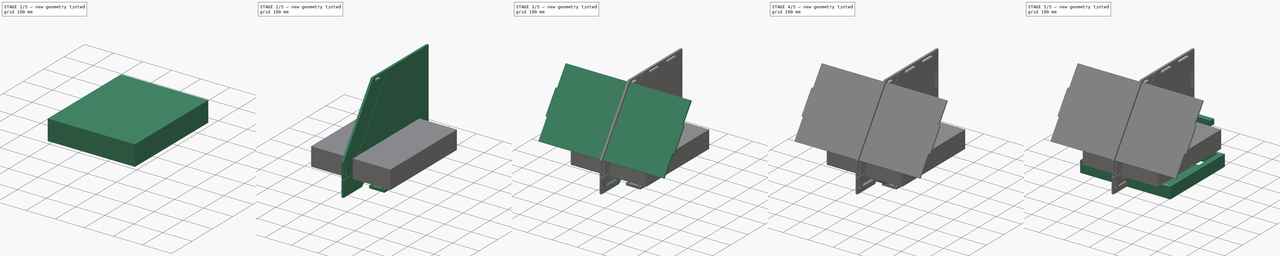
[diagram: build sequence overview — one tinted view per stage of 5, left to right]
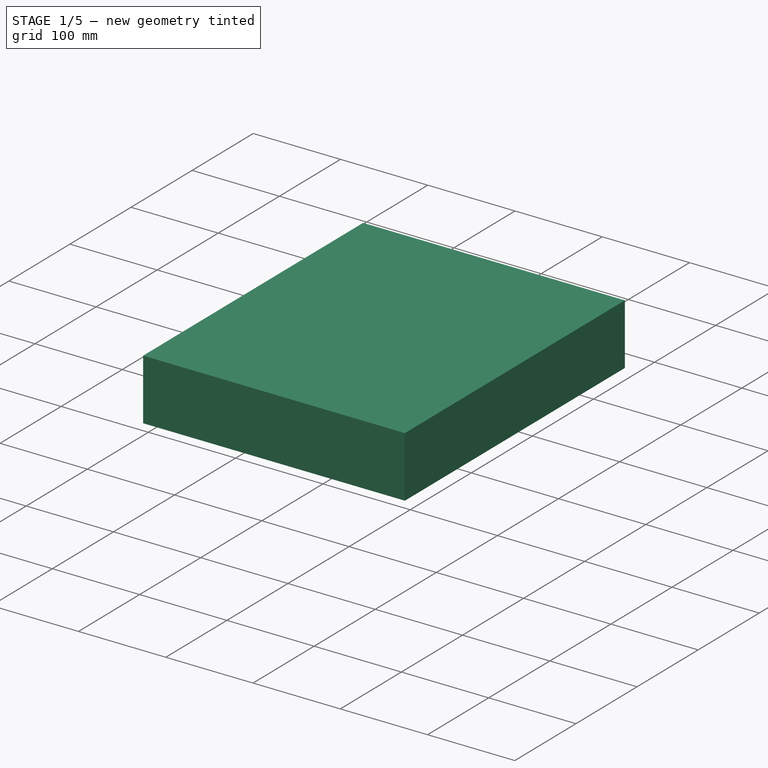
[diagram: stage 1 of 5 — iso view after this stage's code; geometry added in this stage tinted green]
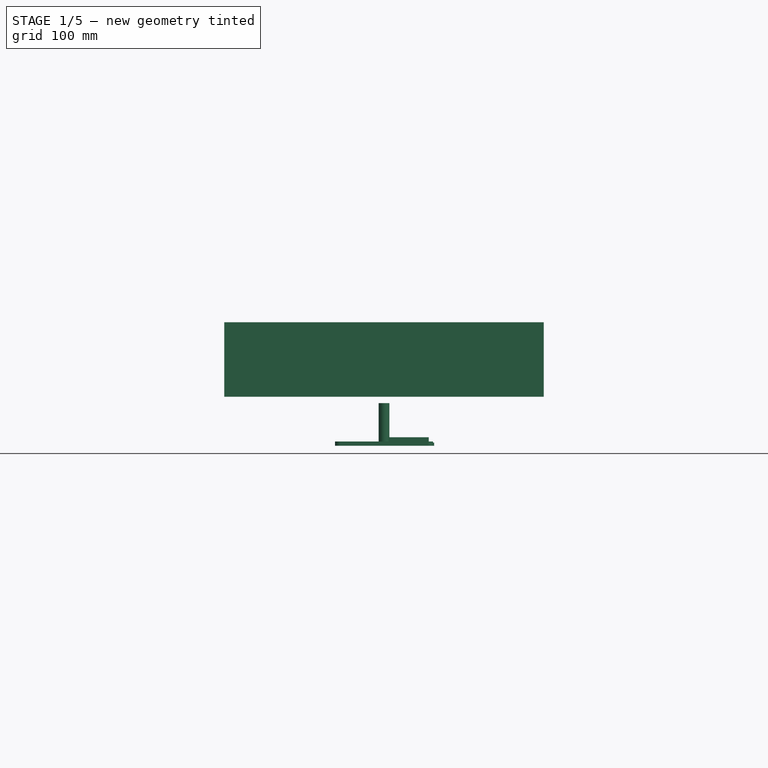
[diagram: stage 1 of 5 — front view after this stage's code; geometry added in this stage tinted green]
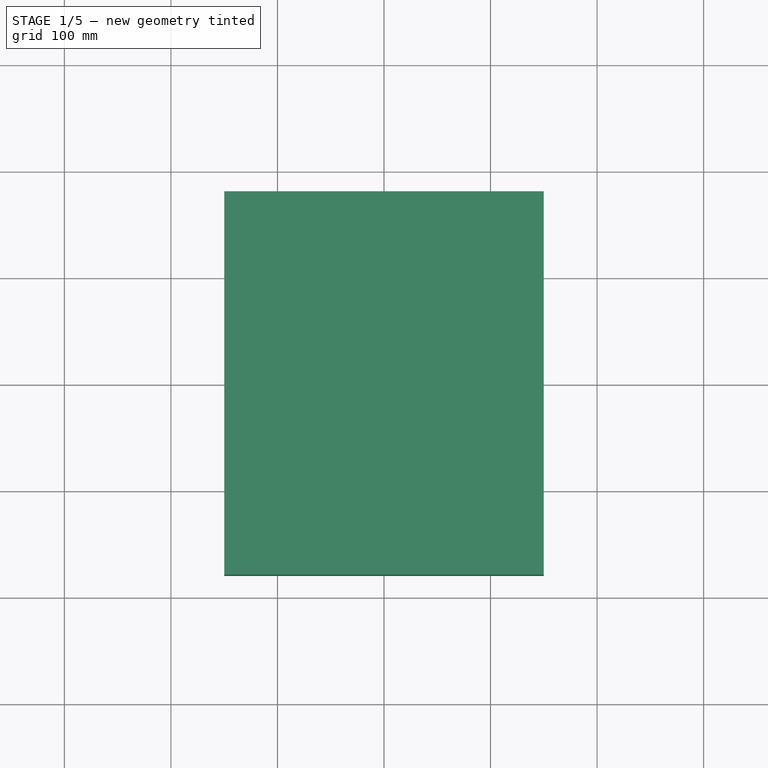
[diagram: stage 1 of 5 — top view after this stage's code; geometry added in this stage tinted green]
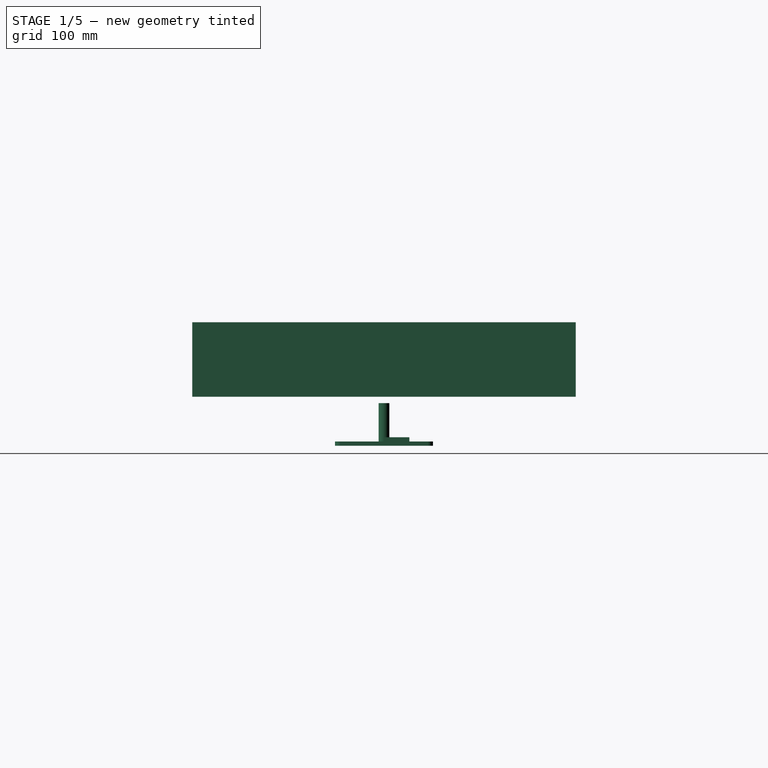
[diagram: stage 1 of 5 — right view after this stage's code; geometry added in this stage tinted green]
FCSTD DOCUMENT  (FreeCAD 0.17R13522 (Git))
Label: cnc3018pro
License: CreativeCommons Attribution-ShareAlike
LicenseURL: http://creativecommons.org/licenses/by-sa/4.0/
objects: Sketcher::SketchObject×38, PartDesign::Pad×24, PartDesign::Body×23, PartDesign::Pocket×13, App::Part×12, PartDesign::Chamfer×3, PartDesign::Mirrored×2, PartDesign::Fillet×2
note: 142 computed .brp shape members not serialized (recipe doc carries the construction recipe); baked Part::Feature solids carry a one-line shape summary decoded from their .brp

FEATURE [PartDesign::Body] Body014
  Group = -> [Sketch027,Pad017,Sketch028,Pocket009,Sketch029,Pad018]
  Origin = -> Origin023
  Tip = -> Pad018
FEATURE [App::Part] Part008
  Group = -> [Body014]
  License = CC BY 3.0
  LicenseURL = http://creativecommons.org/licenses/by/3.0/
  Origin = -> Origin022
  Placement = pos=(250,0,9) rot=(0,0,1;0rad)
FEATURE [Sketcher::SketchObject] Sketch030  label="xstop-outline"
  MapMode = 5
  Support = -> [XY_Plane025]
  sketch-geometry (9):
    g0: LineSegment StartX=0 StartY=23.8 StartZ=0 EndX=42 EndY=23.8 EndZ=0
    g1: LineSegment StartX=42 StartY=23.8 StartZ=0 EndX=42 EndY=0 EndZ=0
    g2: LineSegment StartX=42 StartY=0 StartZ=0 EndX=0 EndY=0 EndZ=0
    g3: LineSegment [constr] StartX=-2 StartY=3.8 StartZ=0 EndX=-2 EndY=23.8 EndZ=0
    g4: LineSegment [constr] StartX=-2 StartY=0 StartZ=0 EndX=-2 EndY=3.8 EndZ=0
    g5: GeomPoint X=-2 Y=13.8 Z=0
    g6: LineSegment StartX=0 StartY=0 StartZ=0 EndX=0 EndY=23.8 EndZ=0
    g7: LineSegment [constr] StartX=-2 StartY=23.8 StartZ=0 EndX=0 EndY=23.8 EndZ=0
    g8: LineSegment [constr] StartX=0 StartY=0 StartZ=0 EndX=-2 EndY=0 EndZ=0
  constraints (25):
    c: Coincident(g0,g1)
    c: Coincident(g1,g2)
    c: Horizontal(g0)
    c: Horizontal(g2)
    c: Vertical(g1)
    c: Vertical(g3)
    c: DistanceY(g3,g3) = 20
    c: DistanceX(g2,g2) = 42
    c: Vertical(g4)
    c: DistanceY(g4,g4) = 3.8
    c: Coincident(g4,g3)
    c: PointOnObject(g5,g3)
    c: Symmetric(g3,g3,g5)
    c: Coincident(g6,g2)
    c: Coincident(g6,g0)
    c: Vertical(g6)
    c: Coincident(g7,g3)
    c: Coincident(g7,g0)
    c: Horizontal(g7)
    c: DistanceX(g7,g7) = 2
    c: PointOnObject(g0,g-2)
    c: Coincident(g8,g2)
    c: Coincident(g8,g4)
    c: Horizontal(g8)
    c: Coincident(g2,g-1)
FEATURE [PartDesign::Pad] Pad019
  Length = 8
  Length2 = 100
  Profile = -> Sketch030
  Type = 0
FEATURE [Sketcher::SketchObject] Sketch032  label="xstop-holes"
  ExternalGeometry = -> [Pad019]
  MapMode = 5
  Placement = pos=(0,0,8) rot=(0,0,1;0rad)
  Support = -> [Pad019]
  sketch-geometry (9):
    g0: Circle CenterX=11 CenterY=13.8 CenterZ=0 NormalX=0 NormalY=0 NormalZ=1 AngleXU=0 Radius=1.6
    g1: Circle CenterX=31 CenterY=13.8 CenterZ=0 NormalX=0 NormalY=0 NormalZ=1 AngleXU=0 Radius=1.6
    g2: LineSegment [constr] StartX=11 StartY=13.8 StartZ=0 EndX=31 EndY=13.8 EndZ=0
    g3: LineSegment [constr] StartX=11 StartY=13.8 StartZ=0 EndX=0 EndY=13.8 EndZ=0
    g4: LineSegment [constr] StartX=31 StartY=13.8 StartZ=0 EndX=42 EndY=13.8 EndZ=0
    g5: LineSegment [constr] StartX=42 StartY=13.8 StartZ=0 EndX=42 EndY=23.8 EndZ=0
    g6: LineSegment [constr] StartX=3 StartY=3 StartZ=0 EndX=22.5 EndY=3 EndZ=0
    g7: Circle CenterX=3 CenterY=3 CenterZ=0 NormalX=0 NormalY=0 NormalZ=1 AngleXU=0 Radius=1.3
    g8: Circle CenterX=22.5 CenterY=3 CenterZ=0 NormalX=0 NormalY=0 NormalZ=1 AngleXU=0 Radius=1.3
  constraints (24):
    c: Coincident(g2,g0)
    c: Coincident(g2,g1)
    c: Horizontal(g2)
    c: DistanceX(g2,g2) = 20
    c: Equal(g0,g1)
    c: Radius(g0) = 1.6
    c: Coincident(g3,g0)
    c: PointOnObject(g3,g-2)
    c: Horizontal(g3)
    c: Coincident(g4,g1)
    c: Horizontal(g4)
    c: Coincident(g5,g4)
    c: Coincident(g5,g-3)
    c: Vertical(g5)
    c: DistanceY(g5,g5) = 10
    c: Equal(g3,g4)
    c: Horizontal(g6)
    c: Coincident(g7,g6)
    c: Coincident(g8,g6)
    c: DistanceX(g6,g6) = 19.5
    c: Equal(g8,g7)
    c: Radius(g8) = 1.3
    c: DistanceY(g6) = 3
    c: DistanceX(g6) = 3
FEATURE [PartDesign::Pocket] Pocket010
  BaseFeature = -> Pad019
  Length = 5
  Length2 = 100
  Profile = -> Sketch032
  Type = 1
FEATURE [PartDesign::Body] Body015
  Group = -> [Sketch030,Pad019,Sketch032,Pocket010,Chamfer002]
  Origin = -> Origin025
  Tip = -> Chamfer002
FEATURE [App::Part] Part009
  Group = -> [Body015]
  License = CC BY 3.0
  LicenseURL = http://creativecommons.org/licenses/by/3.0/
  Origin = -> Origin024
  Placement = pos=(250,0,0) rot=(0,0,1;0rad)
FEATURE [Sketcher::SketchObject] Sketch033  label="ystop-outline"
  MapMode = 5
  Support = -> [XY_Plane027]
  sketch-geometry (4):
    g0: LineSegment StartX=0 StartY=20 StartZ=0 EndX=47 EndY=20 EndZ=0
    g1: LineSegment StartX=47 StartY=20 StartZ=0 EndX=47 EndY=0 EndZ=0
    g2: LineSegment StartX=47 StartY=0 StartZ=0 EndX=0 EndY=0 EndZ=0
    g3: LineSegment StartX=0 StartY=0 StartZ=0 EndX=0 EndY=20 EndZ=0
  constraints (12):
    c: Coincident(g0,g1)
    c: Coincident(g1,g2)
    c: Coincident(g2,g3)
    c: Coincident(g3,g0)
    c: Horizontal(g0)
    c: Horizontal(g2)
    c: Vertical(g1)
    c: Vertical(g3)
    c: PointOnObject(g2,g-1)
    c: DistanceY(g3,g3) = 20
    c: DistanceX(g2,g2) = 47
    c: Coincident(g2,g-1)
FEATURE [PartDesign::Pad] Pad020
  Length = 3
  Length2 = 100
  Profile = -> Sketch033
  Type = 0
FEATURE [Sketcher::SketchObject] Sketch034  label="ystop-holes"
  MapMode = 5
  Placement = pos=(0,0,3) rot=(0,0,1;0rad)
  Support = -> [Pad020]
  sketch-geometry (3):
    g0: LineSegment [constr] StartX=5 StartY=10 StartZ=0 EndX=24.5 EndY=10 EndZ=0
    g1: Circle CenterX=5 CenterY=10 CenterZ=0 NormalX=0 NormalY=0 NormalZ=1 AngleXU=0 Radius=1.6
    g2: Circle CenterX=24.5 CenterY=10 CenterZ=0 NormalX=0 NormalY=0 NormalZ=1 AngleXU=0 Radius=1.6
  constraints (8):
    c: Horizontal(g0)
    c: Coincident(g1,g0)
    c: Coincident(g2,g0)
    c: DistanceX(g0,g0) = 19.5
    c: Equal(g2,g1)
    c: Radius(g2) = 1.6
    c: DistanceY(g0) = 10
    c: DistanceX(g0) = 5
FEATURE [PartDesign::Pocket] Pocket011
  BaseFeature = -> Pad020
  Length = 5
  Length2 = 100
  Profile = -> Sketch034
  Type = 1
FEATURE [PartDesign::Body] Body016
  Group = -> [Sketch033,Pad020,Sketch034,Pocket011]
  Origin = -> Origin027
  Tip = -> Pocket011
FEATURE [App::Part] Part010
  Group = -> [Body016]
  License = CC BY 3.0
  LicenseURL = http://creativecommons.org/licenses/by/3.0/
  Origin = -> Origin026
  Placement = pos=(310,0,0) rot=(0,0,1;0rad)
FEATURE [Sketcher::SketchObject] Sketch035  label="driverboard-standoff"
  MapMode = 5
  Support = -> [XY_Plane029]
  sketch-geometry (2):
    g0: Circle CenterX=0 CenterY=0 CenterZ=0 NormalX=0 NormalY=0 NormalZ=1 AngleXU=0 Radius=2.7
    g1: Circle CenterX=0 CenterY=0 CenterZ=0 NormalX=0 NormalY=0 NormalZ=1 AngleXU=0 Radius=5
  constraints (4):
    c: Coincident(g0,g-1)
    c: Coincident(g1,g-1)
    c: Radius(g0) = 2.7
    c: Radius(g1) = 5
FEATURE [PartDesign::Pad] Pad021
  Length = 40
  Length2 = 100
  Profile = -> Sketch035
  Type = 0
FEATURE [PartDesign::Body] Body017
  Group = -> [Sketch035,Pad021]
  Origin = -> Origin029
  Placement = pos=(39,38,0) rot=(0,0,1;0rad)
  Tip = -> Pad021
FEATURE [Sketcher::SketchObject] Sketch036  label="driverboard-lid-outline"
  MapMode = 5
  Support = -> [XY_Plane030]
  sketch-geometry (4):
    g0: LineSegment StartX=-46 StartY=46 StartZ=0 EndX=46 EndY=46 EndZ=0
    g1: LineSegment StartX=46 StartY=46 StartZ=0 EndX=46 EndY=-46 EndZ=0
    g2: LineSegment StartX=46 StartY=-46 StartZ=0 EndX=-46 EndY=-46 EndZ=0
    g3: LineSegment StartX=-46 StartY=-46 StartZ=0 EndX=-46 EndY=46 EndZ=0
  constraints (12):
    c: Coincident(g0,g1)
    c: Coincident(g1,g2)
    c: Coincident(g2,g3)
    c: Coincident(g3,g0)
    c: Horizontal(g0)
    c: Horizontal(g2)
    c: Vertical(g1)
    c: Vertical(g3)
    c: Symmetric(g1,g2,g-2)
    c: Symmetric(g2,g0,g-1)
    c: DistanceY(g1,g1) = 92
    c: DistanceX(g2,g2) = 92
FEATURE [PartDesign::Pad] Pad022
  Length = 4
  Length2 = 100
  Profile = -> Sketch036
  Type = 0
FEATURE [Sketcher::SketchObject] Sketch037  label="driverboard-lid-holes"
  MapMode = 5
  Placement = pos=(0,0,4) rot=(0,0,1;0rad)
  Support = -> [Pad022]
  sketch-geometry (8):
    g0: LineSegment [constr] StartX=-39 StartY=38 StartZ=0 EndX=39 EndY=38 EndZ=0
    g1: LineSegment [constr] StartX=39 StartY=38 StartZ=0 EndX=39 EndY=-38 EndZ=0
    g2: LineSegment [constr] StartX=39 StartY=-38 StartZ=0 EndX=-39 EndY=-38 EndZ=0
    g3: LineSegment [constr] StartX=-39 StartY=-38 StartZ=0 EndX=-39 EndY=38 EndZ=0
    g4: Circle CenterX=-39 CenterY=38 CenterZ=0 NormalX=0 NormalY=0 NormalZ=1 AngleXU=0 Radius=2.6
    g5: Circle CenterX=-39 CenterY=-38 CenterZ=0 NormalX=0 NormalY=0 NormalZ=1 AngleXU=0 Radius=2.6
    g6: Circle CenterX=39 CenterY=-38 CenterZ=0 NormalX=0 NormalY=0 NormalZ=1 AngleXU=0 Radius=2.6
    g7: Circle CenterX=39 CenterY=38 CenterZ=0 NormalX=0 NormalY=0 NormalZ=1 AngleXU=0 Radius=2.6
  constraints (20):
    c: Coincident(g0,g1)
    c: Coincident(g1,g2)
    c: Coincident(g2,g3)
    c: Coincident(g3,g0)
    c: Horizontal(g0)
    c: Horizontal(g2)
    c: Vertical(g1)
    c: Vertical(g3)
    c: Symmetric(g1,g0,g-1)
    c: Symmetric(g0,g0,g-2)
    c: DistanceX(g0,g0) = 78
    c: DistanceY(g3,g3) = 76
    c: Coincident(g4,g0)
    c: Coincident(g5,g2)
    c: Coincident(g6,g1)
    c: Coincident(g7,g0)
    c: Equal(g7,g4)
    c: Equal(g4,g5)
    c: Equal(g5,g6)
    c: Radius(g7) = 2.6
FEATURE [PartDesign::Pocket] Pocket012
  BaseFeature = -> Pad022
  Length = 5
  Length2 = 100
  Profile = -> Sketch037
  Type = 1
FEATURE [PartDesign::Fillet] Fillet001
  Base = -> Pocket012 [Edge8,Edge5,Edge1,Edge2]
  BaseFeature = -> Pocket012
  Radius = 5
FEATURE [PartDesign::Body] Body018
  Group = -> [Sketch036,Pad022,Sketch037,Pocket012,Fillet001]
  Origin = -> Origin030
  Tip = -> Fillet001
FEATURE [PartDesign::Body] Body019
  Origin = -> Origin031
FEATURE [PartDesign::Body] Body020
  Origin = -> Origin032
FEATURE [App::Part] Part011
  Group = -> [Body017,Body018,Body019,Body020]
  License = CC BY 3.0
  LicenseURL = http://creativecommons.org/licenses/by/3.0/
  Origin = -> Origin028
  Placement = pos=(300,-50,0) rot=(0,0,1;0rad)
FEATURE [Sketcher::SketchObject] Sketch038  label="buildvolume-s"
  MapMode = 5
  Placement = pos=(0,0,0) rot=(0.57735,0.57735,0.57735;2.0944rad)
  Support = -> [YZ_Plane033]
  sketch-geometry (6):
    g0: LineSegment StartX=-180 StartY=116 StartZ=0 EndX=180 EndY=116 EndZ=0
    g1: LineSegment StartX=180 StartY=116 StartZ=0 EndX=180 EndY=46 EndZ=0
    g2: LineSegment StartX=180 StartY=46 StartZ=0 EndX=-180 EndY=46 EndZ=0
    g3: LineSegment StartX=-180 StartY=46 StartZ=0 EndX=-180 EndY=116 EndZ=0
    g4: GeomPoint X=-154 Y=46 Z=0
    g5: GeomPoint X=154 Y=46 Z=0
  constraints (15):
    c: Coincident(g0,g1)
    c: Coincident(g1,g2)
    c: Coincident(g2,g3)
    c: Coincident(g3,g0)
    c: Horizontal(g0)
    c: Horizontal(g2)
    c: Vertical(g1)
    c: Vertical(g3)
    c: PointOnObject(g5,g2)
    c: DistanceX(g5,g1) = 26
    c: DistanceX(g2,g4) = 26
    c: DistanceX(g2,g2) = 360
    c: Symmetric(g5,g4,g-2)
    c: DistanceY(g3,g3) = 70
    c: DistanceY(g2) = 46
FEATURE [PartDesign::Pad] Pad023
  Length = 300
  Length2 = 100
  Midplane = true
  Placement = pos=(0,0,0) rot=(0.57735,0.57735,0.57735;2.0944rad)
  Profile = -> Sketch038
  Type = 0
FEATURE [PartDesign::Body] Body021
  Group = -> [Sketch038,Pad023]
  Origin = -> Origin033
  Tip = -> Pad023
FEATURE [App::Part] Part
  Group = -> [Body,Body001,Body003,Body004,Body021]
  License = CC BY 3.0
  LicenseURL = http://creativecommons.org/licenses/by/3.0/
  Origin = -> Origin
FEATURE [PartDesign::Body] Body022
  Origin = -> Origin034
FEATURE [Sketcher::SketchObject] Sketch039
  MapMode = 5
  Support = -> [XY_Plane035]
  sketch-geometry (8):
    g0: LineSegment StartX=-114.124 StartY=-11.1267 StartZ=0 EndX=-14.1239 EndY=-11.1267 EndZ=0
    g1: LineSegment StartX=-14.1239 StartY=-11.1267 StartZ=0 EndX=-14.1239 EndY=-86.1267 EndZ=0
    g2: LineSegment StartX=-14.1239 StartY=-86.1267 StartZ=0 EndX=-114.124 EndY=-86.1267 EndZ=0
    g3: LineSegment StartX=-114.124 StartY=-86.1267 StartZ=0 EndX=-114.124 EndY=-11.1267 EndZ=0
    g4: LineSegment StartX=125.903 StartY=92.0832 StartZ=0 EndX=25.9032 EndY=92.0832 EndZ=0
    g5: LineSegment StartX=25.9032 StartY=92.0832 StartZ=0 EndX=25.9032 EndY=-87.9168 EndZ=0
    g6: LineSegment StartX=25.9032 StartY=-87.9168 StartZ=0 EndX=125.903 EndY=-87.9168 EndZ=0
    g7: LineSegment StartX=125.903 StartY=-87.9168 StartZ=0 EndX=125.903 EndY=92.0832 EndZ=0
  constraints (20):
    c: Coincident(g0,g1)
    c: Coincident(g1,g2)
    c: Coincident(g2,g3)
    c: Coincident(g3,g0)
    c: Horizontal(g0)
    c: Horizontal(g2)
    c: Vertical(g1)
    c: Vertical(g3)
    c: DistanceY(g3,g3) = 75
    c: DistanceX(g2,g2) = 100
    c: Coincident(g4,g5)
    c: Coincident(g5,g6)
    c: Coincident(g6,g7)
    c: Coincident(g7,g4)
    c: Horizontal(g4)
    c: Horizontal(g6)
    c: Vertical(g5)
    c: Vertical(g7)
    c: DistanceX(g6,g6) = 100
    c: DistanceY(g7,g7) = 180
FEATURE [PartDesign::Body] Body023
  Group = -> [Sketch039]
  Origin = -> Origin035
FEATURE [App::Part] Part001
  Group = -> [Body002,Body023]
  License = CC BY 3.0
  LicenseURL = http://creativecommons.org/licenses/by/3.0/
  Origin = -> Origin003
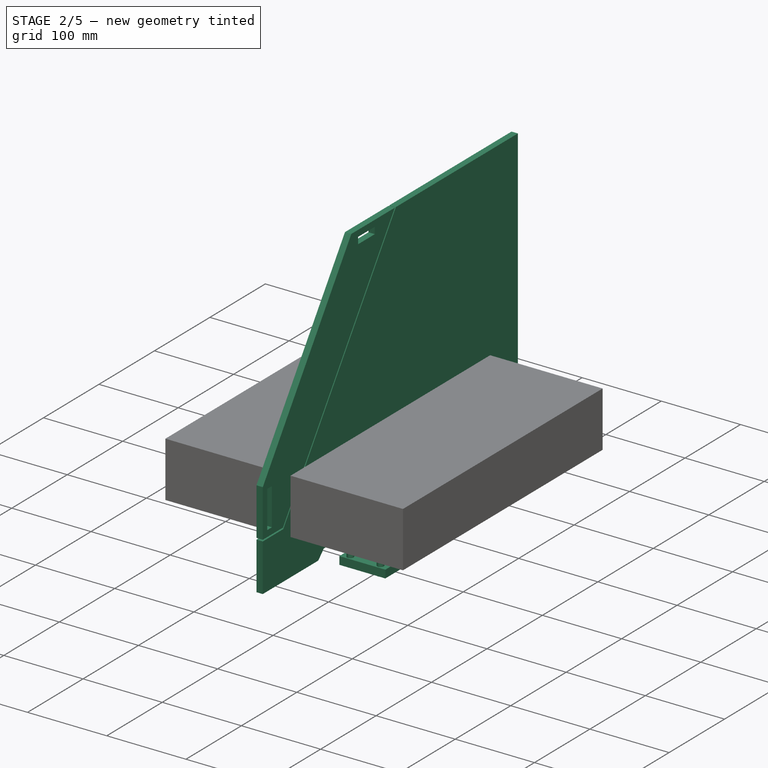
[diagram: stage 2 of 5 — iso view after this stage's code; geometry added in this stage tinted green]
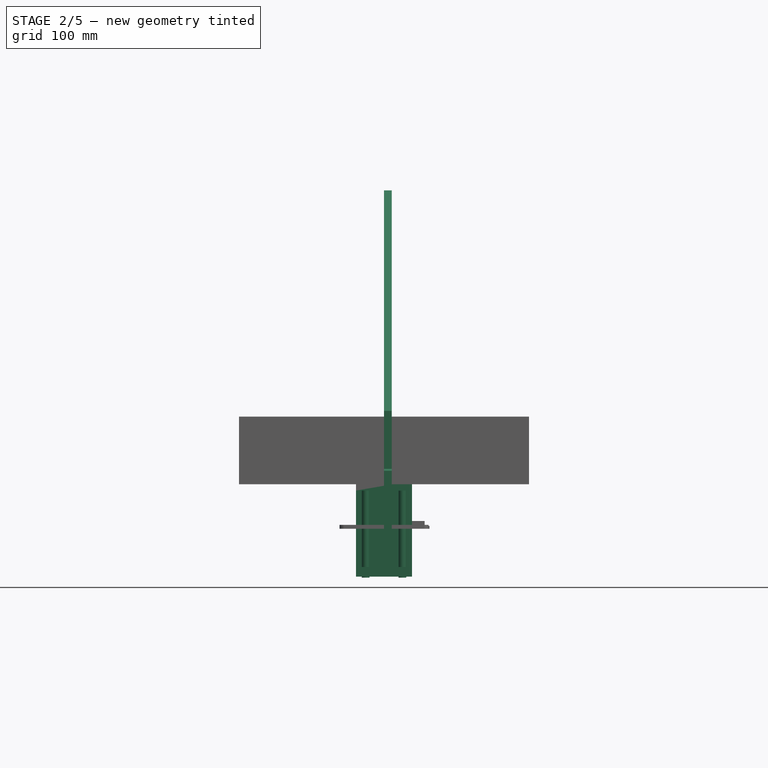
[diagram: stage 2 of 5 — front view after this stage's code; geometry added in this stage tinted green]
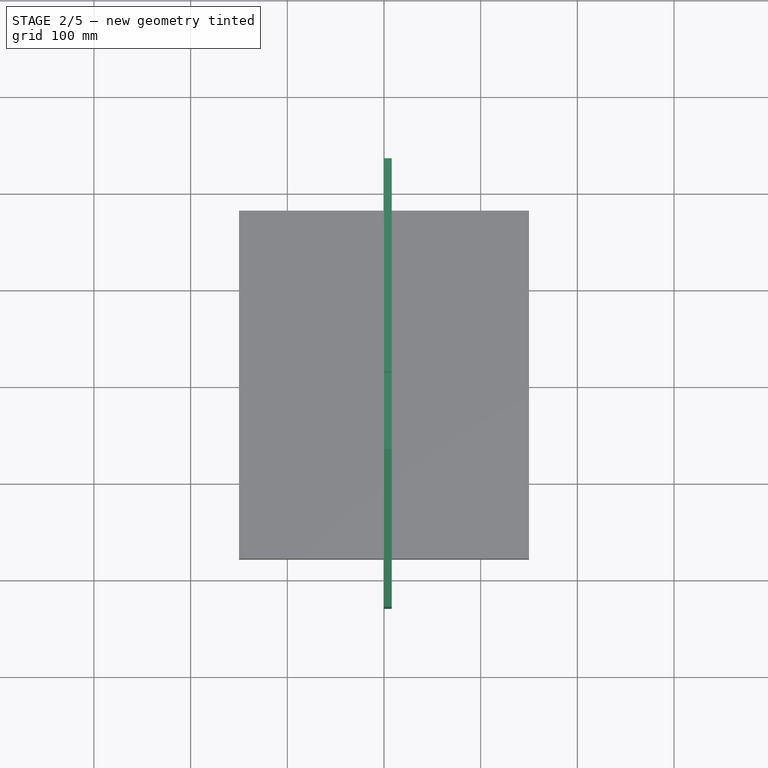
[diagram: stage 2 of 5 — top view after this stage's code; geometry added in this stage tinted green]
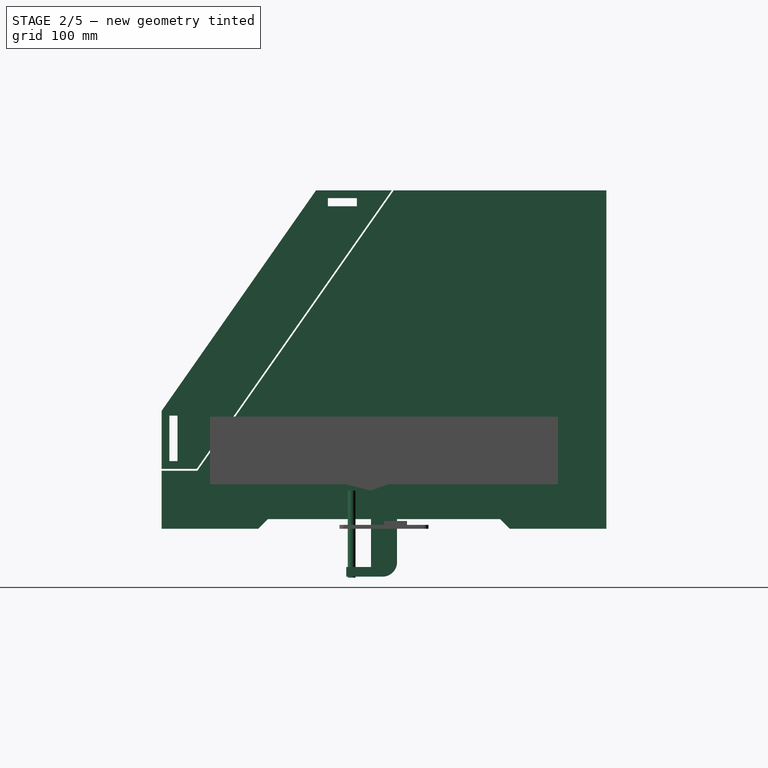
[diagram: stage 2 of 5 — right view after this stage's code; geometry added in this stage tinted green]
FEATURE [PartDesign::Body] Body005
  Group = -> [Sketch008,Pad005,Mirrored,Sketch009,Pocket002,Sketch010,Pocket003]
  Origin = -> Origin008
  Tip = -> Pocket003
FEATURE [App::Part] Part002
  Group = -> [Body005]
  License = CC BY 3.0
  LicenseURL = http://creativecommons.org/licenses/by/3.0/
  Origin = -> Origin007
  Placement = pos=(200,0,0) rot=(0,0,1;0rad)
FEATURE [Sketcher::SketchObject] Sketch011  label="zstop-hold-base"
  MapMode = 5
  Placement = pos=(0,0,0) rot=(1,0,0;1.5708rad)
  Support = -> [XZ_Plane010]
  sketch-geometry (9):
    g0: LineSegment StartX=0 StartY=5.2 StartZ=0 EndX=1 EndY=5.2 EndZ=0
    g1: LineSegment StartX=1 StartY=5.2 StartZ=0 EndX=1 EndY=-5.2 EndZ=0
    g2: LineSegment StartX=1 StartY=-5.2 StartZ=0 EndX=0 EndY=-5.2 EndZ=0
    g3: LineSegment StartX=0 StartY=-5.2 StartZ=0 EndX=0 EndY=-7.2 EndZ=0
    g4: LineSegment StartX=0 StartY=-7.2 StartZ=0 EndX=2 EndY=-7.2 EndZ=0
    g5: LineSegment StartX=2 StartY=-7.2 StartZ=0 EndX=2 EndY=7.2 EndZ=0
    g6: LineSegment StartX=2 StartY=7.2 StartZ=0 EndX=0 EndY=7.2 EndZ=0
    g7: LineSegment StartX=0 StartY=7.2 StartZ=0 EndX=0 EndY=5.2 EndZ=0
    g8: LineSegment [constr] StartX=0 StartY=-5.2 StartZ=0 EndX=0 EndY=5.2 EndZ=0
  constraints (26):
    c: Horizontal(g0)
    c: Coincident(g0,g1)
    c: Vertical(g1)
    c: Coincident(g1,g2)
    c: Coincident(g2,g3)
    c: Coincident(g3,g4)
    c: Coincident(g4,g5)
    c: Vertical(g5)
    c: Coincident(g5,g6)
    c: Horizontal(g6)
    c: Coincident(g6,g7)
    c: Coincident(g7,g0)
    c: Vertical(g7)
    c: Horizontal(g2)
    c: Vertical(g3)
    c: Horizontal(g4)
    c: Coincident(g8,g2)
    c: Coincident(g8,g0)
    c: Vertical(g8)
    c: DistanceX(g0,g0) = 1
    c: Equal(g3,g7)
    c: DistanceY(g7,g7) = 2
    c: DistanceY(g1,g1) = 10.4
    c: DistanceX(g0,g5) = 1
    c: PointOnObject(g-1,g8)
    c: Symmetric(g8,g8,g-1)
FEATURE [Sketcher::SketchObject] Sketch012  label="xcar-outer"
  MapMode = 5
  Placement = pos=(0,0,0) rot=(0.57735,0.57735,0.57735;2.0944rad)
  Support = -> [YZ_Plane013]
  sketch-geometry (12):
    g0: LineSegment StartX=-53.5 StartY=49.5 StartZ=0 EndX=-1.5 EndY=49.5 EndZ=0
    g1: ArcOfCircle CenterX=-1.5 CenterY=34.5 CenterZ=0 NormalX=0 NormalY=0 NormalZ=1 AngleXU=0 Radius=15 StartAngle=0 EndAngle=1.5708
    g2: LineSegment StartX=13.5 StartY=34.5 StartZ=0 EndX=13.5 EndY=-34.5 EndZ=0
    g3: ArcOfCircle CenterX=-1.5 CenterY=-34.5 CenterZ=0 NormalX=0 NormalY=0 NormalZ=1 AngleXU=0 Radius=15 StartAngle=4.71239 EndAngle=6.28319
    g4: LineSegment StartX=-1.5 StartY=-49.5 StartZ=0 EndX=-39 EndY=-49.5 EndZ=0
    g5: LineSegment StartX=-39 StartY=-49.5 StartZ=0 EndX=-39 EndY=-39.5 EndZ=0
    g6: LineSegment StartX=-39 StartY=-39.5 StartZ=0 EndX=-13.5 EndY=-39.5 EndZ=0
    g7: LineSegment StartX=-13.5 StartY=-39.5 StartZ=0 EndX=-13.5 EndY=39.5 EndZ=0
    g8: LineSegment StartX=-13.5 StartY=39.5 StartZ=0 EndX=-53.5 EndY=39.5 EndZ=0
    g9: LineSegment StartX=-53.5 StartY=39.5 StartZ=0 EndX=-53.5 EndY=49.5 EndZ=0
    g10: LineSegment [constr] StartX=-13.5 StartY=0 StartZ=0 EndX=13.5 EndY=0 EndZ=0
    g11: GeomPoint X=0 Y=0 Z=0
  constraints (33):
    c: Horizontal(g0)
    c: Tangent(g0,g1) = 1.5708
    c: Tangent(g1,g2) = 1.5708
    c: Tangent(g2,g3) = 1.5708
    c: Horizontal(g4)
    c: Coincident(g4,g5)
    c: Vertical(g5)
    c: Coincident(g5,g6)
    c: Horizontal(g6)
    c: Coincident(g6,g7)
    c: Vertical(g7)
    c: Coincident(g7,g8)
    c: Horizontal(g8)
    c: Coincident(g8,g9)
    c: Coincident(g9,g0)
    c: Tangent(g3,g4) = 1.5708
    c: Vertical(g2)
    c: Vertical(g9)
    c: DistanceY(g9,g9) = 10
    c: DistanceY(g5,g5) = 10
    c: DistanceX(g6,g2) = 27
    c: DistanceX(g6,g6) = 25.5
    c: DistanceX(g8,g8) = 40
    c: DistanceY(g3,g0) = 99
    c: DistanceY(g1,g0) = 15
    c: PointOnObject(g10,g7)
    c: PointOnObject(g10,g2)
    c: Horizontal(g10)
    c: Symmetric(g2,g2,g10)
    c: Equal(g1,g3)
    c: PointOnObject(g11,g10)
    c: Symmetric(g10,g10,g11)
    c: Coincident(g11,g-1)
FEATURE [PartDesign::Pad] Pad006
  Length = 58
  Length2 = 100
  Midplane = true
  Placement = pos=(0,0,0) rot=(0.57735,0.57735,0.57735;2.0944rad)
  Profile = -> Sketch012
  Type = 0
FEATURE [PartDesign::Pad] Pad013
  Length = 8
  Length2 = 100
  Placement = pos=(0,0,0) rot=(0.57735,0.57735,0.57735;2.0944rad)
  Profile = -> Sketch022
  Type = 0
FEATURE [PartDesign::Pad] Pad014
  Length = 8
  Length2 = 100
  Placement = pos=(0,0,0) rot=(0.57735,0.57735,0.57735;2.0944rad)
  Profile = -> Sketch021
  Type = 0
FEATURE [PartDesign::Body] Body012
  Group = -> [Sketch021,Pad014,Sketch024,Pocket007]
  Origin = -> Origin020
  Placement = pos=(250,0,0) rot=(0,0,1;0rad)
  Tip = -> Pocket007
FEATURE [Sketcher::SketchObject] Sketch025  label="lid-slots"
  MapMode = 5
  Placement = pos=(8,0,0) rot=(0.57735,0.57735,0.57735;2.0944rad)
  Support = -> [Pad013]
  sketch-geometry (12):
    g0: LineSegment StartX=-222 StartY=117 StartZ=0 EndX=-213.6 EndY=117 EndZ=0
    g1: LineSegment StartX=-213.6 StartY=117 StartZ=0 EndX=-213.6 EndY=70 EndZ=0
    g2: LineSegment StartX=-213.6 StartY=70 StartZ=0 EndX=-222 EndY=70 EndZ=0
    g3: LineSegment StartX=-222 StartY=70 StartZ=0 EndX=-222 EndY=117 EndZ=0
    g4: LineSegment StartX=-58 StartY=342 StartZ=0 EndX=-28 EndY=342 EndZ=0
    g5: LineSegment StartX=-28 StartY=342 StartZ=0 EndX=-28 EndY=333.6 EndZ=0
    g6: LineSegment StartX=-28 StartY=333.6 StartZ=0 EndX=-58 EndY=333.6 EndZ=0
    g7: LineSegment StartX=-58 StartY=333.6 StartZ=0 EndX=-58 EndY=342 EndZ=0
    g8: LineSegment [constr] StartX=-58 StartY=342 StartZ=0 EndX=-58 EndY=350 EndZ=0
    g9: LineSegment [constr] StartX=-222 StartY=70 StartZ=0 EndX=-230 EndY=70 EndZ=0
    g10: LineSegment [constr] StartX=-58 StartY=350 StartZ=0 EndX=0 EndY=350 EndZ=0
    g11: LineSegment [constr] StartX=-230 StartY=70 StartZ=0 EndX=-230 EndY=62 EndZ=0
  constraints (36):
    c: Coincident(g0,g1)
    c: Coincident(g1,g2)
    c: Coincident(g2,g3)
    c: Coincident(g3,g0)
    c: Horizontal(g0)
    c: Horizontal(g2)
    c: Vertical(g1)
    c: Vertical(g3)
    c: Coincident(g4,g5)
    c: Coincident(g5,g6)
    c: Coincident(g6,g7)
    c: Coincident(g7,g4)
    c: Horizontal(g4)
    c: Horizontal(g6)
    c: Vertical(g5)
    c: Vertical(g7)
    c: Coincident(g8,g4)
    c: Vertical(g8)
    c: DistanceY(g7,g7) = 8.4
    c: DistanceY(g8,g8) = 8
    c: Equal(g0,g7)
    c: Coincident(g9,g2)
    c: Horizontal(g9)
    c: Equal(g9,g8)
    c: Coincident(g10,g8)
    c: PointOnObject(g10,g-2)
    c: Horizontal(g10)
    c: DistanceY(g10) = 350
    c: Coincident(g11,g9)
    c: Vertical(g11)
    c: DistanceY(g11) = 62
    c: DistanceX(g11) = -230
    c: Equal(g11,g9)
    c: DistanceX(g10,g10) = 58
    c: DistanceX(g4,g4) = 30
    c: DistanceY(g0) = 117
FEATURE [PartDesign::Pocket] Pocket008
  BaseFeature = -> Pad013
  Length = 5
  Length2 = 100
  Placement = pos=(0,0,0) rot=(0.57735,0.57735,0.57735;2.0944rad)
  Profile = -> Sketch025
  Type = 1
FEATURE [PartDesign::Body] Body013
  Group = -> [Sketch022,Pad013,Sketch025,Pocket008]
  Origin = -> Origin021
  Placement = pos=(250,0,0) rot=(0,0,1;0rad)
  Tip = -> Pocket008
FEATURE [App::Part] Part007  label="Part-box"
  Group = -> [Body011,Body012,Body013]
  License = CC BY 3.0
  LicenseURL = http://creativecommons.org/licenses/by/3.0/
  Origin = -> Origin018
  Placement = pos=(0,-9,-30) rot=(0,0,1;0rad)
FEATURE [Sketcher::SketchObject] Sketch026  label="xcar-rails"
  ExternalGeometry = -> [Pad006]
  MapMode = 5
  Placement = pos=(0,0,49.5) rot=(0,0,-1;1.5708rad)
  Support = -> [Pad006]
  sketch-geometry (6):
    g0: LineSegment [constr] StartX=33.5 StartY=19 StartZ=0 EndX=33.5 EndY=-19 EndZ=0
    g1: Circle CenterX=33.5 CenterY=19 CenterZ=0 NormalX=0 NormalY=0 NormalZ=1 AngleXU=0 Radius=4
    g2: Circle CenterX=33.5 CenterY=-19 CenterZ=0 NormalX=0 NormalY=0 NormalZ=1 AngleXU=0 Radius=4
    g3: LineSegment [constr] StartX=33.5 StartY=19 StartZ=0 EndX=33.5 EndY=23 EndZ=0
    g4: LineSegment [constr] StartX=33.5 StartY=-19 StartZ=0 EndX=33.5 EndY=-23 EndZ=0
    g5: LineSegment [constr] StartX=33.5 StartY=23 StartZ=0 EndX=53.5 EndY=23 EndZ=0
  constraints (17):
    c: Vertical(g0)
    c: Coincident(g1,g0)
    c: Coincident(g2,g0)
    c: Equal(g2,g1)
    c: Radius(g1) = 4
    c: Coincident(g3,g0)
    c: PointOnObject(g3,g1)
    c: Vertical(g3)
    c: Coincident(g4,g0)
    c: PointOnObject(g4,g2)
    c: Vertical(g4)
    c: DistanceY(g4,g3) = 46
    c: Symmetric(g0,g0,g-1)
    c: Coincident(g5,g3)
    c: Horizontal(g5)
    c: DistanceX(g5,g5) = 20
    c: PointOnObject(g5,g-3)
FEATURE [PartDesign::Pad] Pad016
  BaseFeature = -> Pad006
  Length = 100
  Length2 = 100
  Placement = pos=(0,0,0) rot=(0.57735,0.57735,0.57735;2.0944rad)
  Profile = -> Sketch026
  Reversed = true
  Type = 0
FEATURE [PartDesign::Body] Body008
  Group = -> [Sketch012,Pad006,Sketch026,Pad016]
  Origin = -> Origin013
  Tip = -> Pad016
FEATURE [App::Part] Part004
  Group = -> [Body008]
  License = CC BY 3.0
  LicenseURL = http://creativecommons.org/licenses/by/3.0/
  Origin = -> Origin011
  Placement = pos=(0,58,156) rot=(0,0,1;0rad)
FEATURE [Sketcher::SketchObject] Sketch027  label="endstop-outline"
  MapMode = 5
  Support = -> [XY_Plane023]
  sketch-geometry (4):
    g0: LineSegment StartX=0 StartY=0 StartZ=0 EndX=40.5 EndY=0 EndZ=0
    g1: LineSegment StartX=40.5 StartY=0 StartZ=0 EndX=40.5 EndY=16 EndZ=0
    g2: LineSegment StartX=40.5 StartY=16 StartZ=0 EndX=0 EndY=16 EndZ=0
    g3: LineSegment StartX=0 StartY=16 StartZ=0 EndX=0 EndY=0 EndZ=0
  constraints (11):
    c: Coincident(g0,g1)
    c: Coincident(g1,g2)
    c: Coincident(g2,g3)
    c: Coincident(g3,g0)
    c: Horizontal(g0)
    c: Horizontal(g2)
    c: Vertical(g1)
    c: Vertical(g3)
    c: Coincident(g0,g-1)
    c: DistanceX(g0,g0) = 40.5
    c: DistanceY(g1,g1) = 16
FEATURE [PartDesign::Pad] Pad017
  Length = 1.5
  Length2 = 100
  Profile = -> Sketch027
  Type = 0
FEATURE [Sketcher::SketchObject] Sketch028  label="endstop-holes"
  ExternalGeometry = -> [Pad017]
  MapMode = 5
  Placement = pos=(0,0,1.5) rot=(0,0,1;0rad)
  Support = -> [Pad017]
  sketch-geometry (8):
    g0: LineSegment [constr] StartX=3 StartY=3 StartZ=0 EndX=22.5 EndY=3 EndZ=0
    g1: Circle CenterX=3 CenterY=3 CenterZ=0 NormalX=0 NormalY=0 NormalZ=1 AngleXU=0 Radius=1.5
    g2: Circle CenterX=22.5 CenterY=3 CenterZ=0 NormalX=0 NormalY=0 NormalZ=1 AngleXU=0 Radius=1.5
    g3: LineSegment [constr] StartX=37.5 StartY=10.75 StartZ=0 EndX=37.5 EndY=5.25 EndZ=0
    g4: Circle CenterX=37.5 CenterY=10.75 CenterZ=0 NormalX=0 NormalY=0 NormalZ=1 AngleXU=0 Radius=1.5
    g5: Circle CenterX=37.5 CenterY=5.25 CenterZ=0 NormalX=0 NormalY=0 NormalZ=1 AngleXU=0 Radius=1.5
    g6: LineSegment [constr] StartX=37.5 StartY=10.75 StartZ=0 EndX=37.5 EndY=16 EndZ=0
    g7: LineSegment [constr] StartX=37.5 StartY=5.25 StartZ=0 EndX=37.5 EndY=0 EndZ=0
  constraints (22):
    c: Horizontal(g0)
    c: Coincident(g1,g0)
    c: Coincident(g2,g0)
    c: Equal(g1,g2)
    c: Radius(g2) = 1.5
    c: DistanceX(g0,g0) = 19.5
    c: DistanceY(g0) = 3
    c: DistanceX(g0) = 3
    c: Vertical(g3)
    c: Coincident(g4,g3)
    c: Coincident(g5,g3)
    c: Equal(g4,g5)
    c: Equal(g5,g2)
    c: DistanceY(g3,g3) = 5.5
    c: Coincident(g6,g3)
    c: Vertical(g6)
    c: Coincident(g7,g3)
    c: Vertical(g7)
    c: Equal(g7,g6)
    c: PointOnObject(g7,g-4)
    c: PointOnObject(g6,g-3)
    c: DistanceX(g3,g-3) = 3
FEATURE [PartDesign::Pocket] Pocket009
  BaseFeature = -> Pad017
  Length = 5
  Length2 = 100
  Profile = -> Sketch028
  Type = 1
FEATURE [Sketcher::SketchObject] Sketch029  label="endstop-parts"
  ExternalGeometry = -> [Pocket009]
  MapMode = 5
  Placement = pos=(0,0,1.5) rot=(0,0,1;0rad)
  Support = -> [Pocket009]
  sketch-geometry (10):
    g0: LineSegment StartX=6.5 StartY=9 StartZ=0 EndX=19.3 EndY=9 EndZ=0
    g1: LineSegment StartX=19.3 StartY=9 StartZ=0 EndX=19.3 EndY=0 EndZ=0
    g2: LineSegment StartX=19.3 StartY=0 StartZ=0 EndX=6.5 EndY=0 EndZ=0
    g3: LineSegment StartX=6.5 StartY=0 StartZ=0 EndX=6.5 EndY=9 EndZ=0
    g4: LineSegment StartX=35.9 StartY=14.25 StartZ=0 EndX=28.9 EndY=14.25 EndZ=0
    g5: LineSegment StartX=28.9 StartY=14.25 StartZ=0 EndX=28.9 EndY=1.75 EndZ=0
    g6: LineSegment StartX=28.9 StartY=1.75 StartZ=0 EndX=35.9 EndY=1.75 EndZ=0
    g7: LineSegment StartX=35.9 StartY=1.75 StartZ=0 EndX=35.9 EndY=14.25 EndZ=0
    g8: LineSegment [constr] StartX=28.9 StartY=1.75 StartZ=0 EndX=28.9 EndY=0 EndZ=0
    g9: LineSegment [constr] StartX=28.9 StartY=14.25 StartZ=0 EndX=28.9 EndY=16 EndZ=0
  constraints (30):
    c: Coincident(g0,g1)
    c: Coincident(g1,g2)
    c: Coincident(g2,g3)
    c: Coincident(g3,g0)
    c: Horizontal(g0)
    c: Horizontal(g2)
    c: Vertical(g1)
    c: Vertical(g3)
    c: Coincident(g4,g5)
    c: Coincident(g5,g6)
    c: Coincident(g6,g7)
    c: Coincident(g7,g4)
    c: Horizontal(g4)
    c: Horizontal(g6)
    c: Vertical(g5)
    c: Vertical(g7)
    c: Coincident(g8,g5)
    c: Coincident(g9,g4)
    c: Vertical(g9)
    c: Vertical(g8)
    c: PointOnObject(g9,g-3)
    c: PointOnObject(g8,g-4)
    c: Equal(g9,g8)
    c: DistanceY(g5,g5) = 12.5
    c: DistanceX(g4,g4) = 7
    c: DistanceX(g4,g-3) = 4.6
    c: PointOnObject(g1,g-4)
    c: DistanceX(g2,g2) = 12.8
    c: DistanceX(g-1,g2) = 6.5
    c: DistanceY(g3,g3) = 9
FEATURE [PartDesign::Pad] Pad018
  BaseFeature = -> Pocket009
  Length = 6
  Length2 = 100
  Profile = -> Sketch029
  Type = 0
FEATURE [PartDesign::Chamfer] Chamfer002
  Base = -> Pocket010 [Edge20,Edge17]
  BaseFeature = -> Pocket010
  Size = 4.5
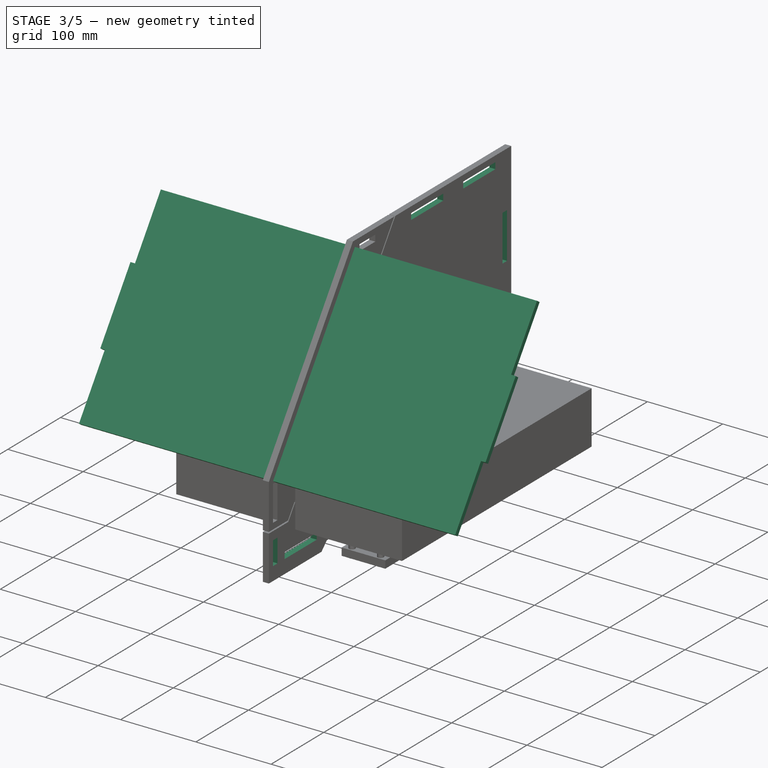
[diagram: stage 3 of 5 — iso view after this stage's code; geometry added in this stage tinted green]
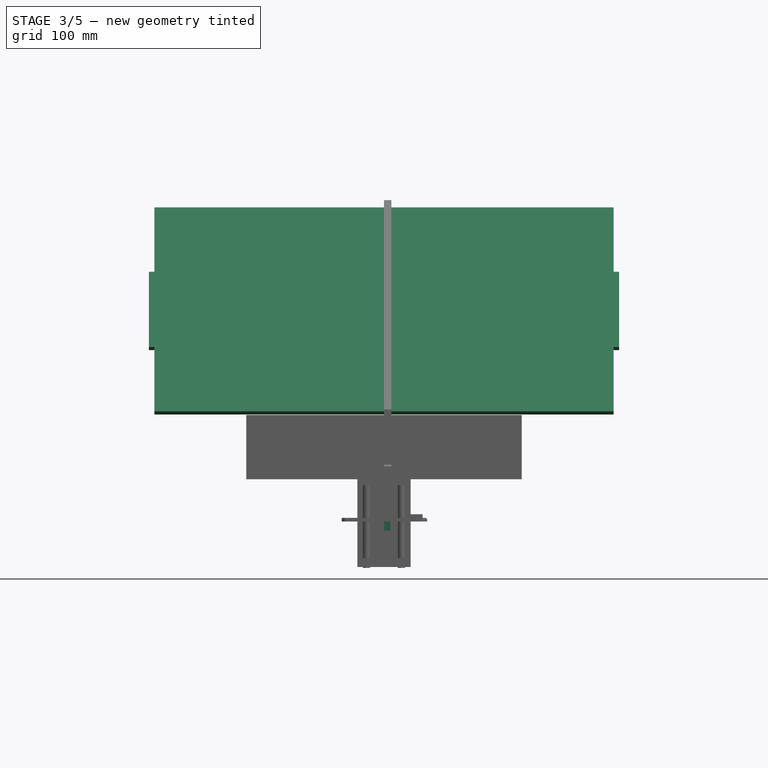
[diagram: stage 3 of 5 — front view after this stage's code; geometry added in this stage tinted green]
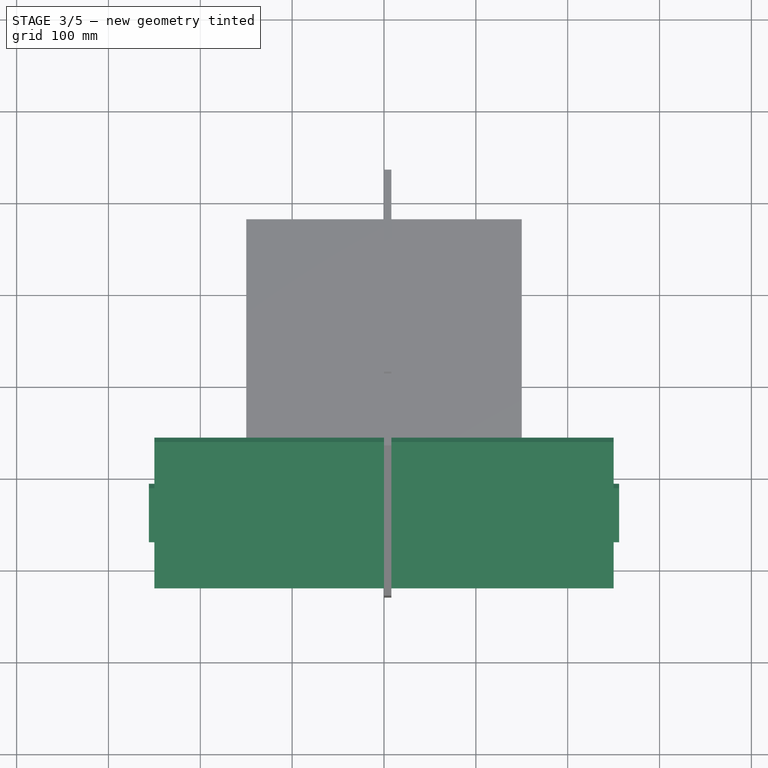
[diagram: stage 3 of 5 — top view after this stage's code; geometry added in this stage tinted green]
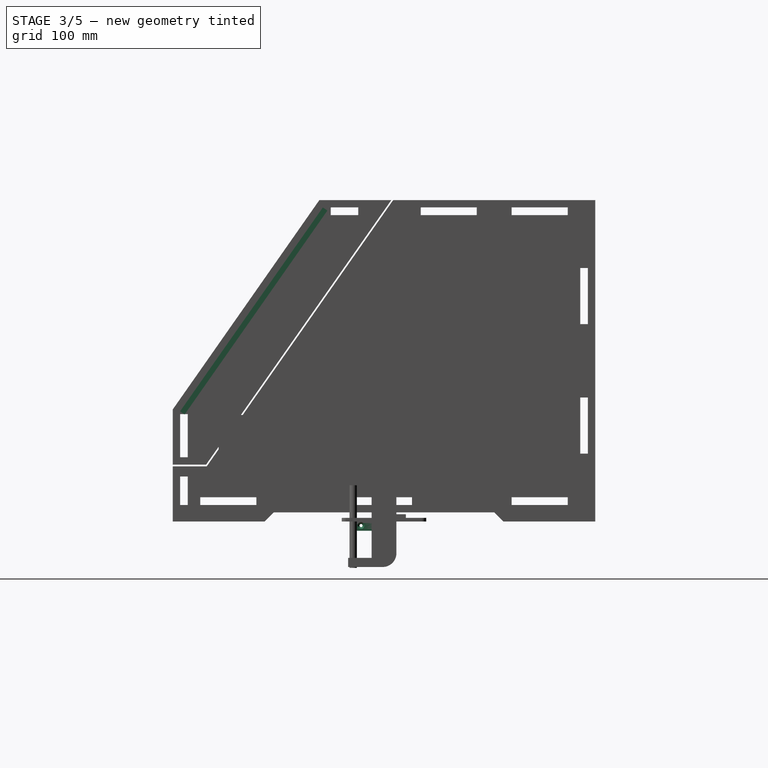
[diagram: stage 3 of 5 — right view after this stage's code; geometry added in this stage tinted green]
FEATURE [Sketcher::SketchObject] Sketch015  label="zstop-base"
  MapMode = 5
  Placement = pos=(0,0,0) rot=(1,0,0;1.5708rad)
  Support = -> [XZ_Plane017]
  sketch-geometry (6):
    g0: LineSegment StartX=-4 StartY=0 StartZ=0 EndX=0 EndY=0 EndZ=0
    g1: LineSegment StartX=0 StartY=0 StartZ=0 EndX=0 EndY=-10 EndZ=0
    g2: LineSegment StartX=0 StartY=-10 StartZ=0 EndX=7 EndY=-10 EndZ=0
    g3: LineSegment StartX=7 StartY=-10 StartZ=0 EndX=7 EndY=2 EndZ=0
    g4: LineSegment StartX=7 StartY=2 StartZ=0 EndX=-4 EndY=2 EndZ=0
    g5: LineSegment StartX=-4 StartY=2 StartZ=0 EndX=-4 EndY=0 EndZ=0
  constraints (18):
    c: Horizontal(g0)
    c: Coincident(g0,g1)
    c: Coincident(g1,g2)
    c: Coincident(g2,g3)
    c: Coincident(g3,g4)
    c: Coincident(g4,g5)
    c: Coincident(g5,g0)
    c: Vertical(g5)
    c: Horizontal(g4)
    c: Horizontal(g2)
    c: PointOnObject(g0,g-2)
    c: DistanceY(g5,g5) = 2
    c: Coincident(g0,g-1)
    c: Vertical(g1)
    c: DistanceX(g-1,g3) = 7
    c: Vertical(g3)
    c: DistanceY(g1,g1) = 10
    c: DistanceX(g0,g0) = 4
FEATURE [PartDesign::Pad] Pad009
  Length = 35
  Length2 = 100
  Placement = pos=(0,0,0) rot=(1,0,0;1.5708rad)
  Profile = -> Sketch015
  Type = 0
FEATURE [Sketcher::SketchObject] Sketch016  label="zstop-holes"
  MapMode = 5
  Placement = pos=(7,0,0) rot=(0.707107,0,0.707107;3.14159rad)
  Support = -> [Pad009]
  sketch-geometry (3):
    g0: Circle CenterX=-4.35438 CenterY=25 CenterZ=0 NormalX=0 NormalY=0 NormalZ=1 AngleXU=0 Radius=1.7
    g1: Circle CenterX=-4.35438 CenterY=5 CenterZ=0 NormalX=0 NormalY=0 NormalZ=1 AngleXU=0 Radius=1.7
    g2: LineSegment [constr] StartX=-4.35438 StartY=5 StartZ=0 EndX=-4.35438 EndY=25 EndZ=0
  constraints (7):
    c: Coincident(g2,g1)
    c: Coincident(g2,g0)
    c: Vertical(g2)
    c: Equal(g0,g1)
    c: DistanceY(g2,g2) = 20
    c: DistanceY(g1) = 5
    c: Radius(g0) = 1.7
FEATURE [PartDesign::Pocket] Pocket005
  BaseFeature = -> Pad009
  Length = 5
  Length2 = 100
  Placement = pos=(0,0,0) rot=(1,0,0;1.5708rad)
  Profile = -> Sketch016
  Type = 1
FEATURE [PartDesign::Chamfer] Chamfer
  Base = -> Pocket005 [Edge23,Edge21]
  BaseFeature = -> Pocket005
  Placement = pos=(0,0,0) rot=(1,0,0;1.5708rad)
  Size = 2
FEATURE [Sketcher::SketchObject] Sketch017  label="zstop-aligner"
  ExternalGeometry = -> [Sketch015]
  MapMode = 5
  Placement = pos=(7,0,0) rot=(0.707107,0,0.707107;3.14159rad)
  Support = -> [Chamfer]
  sketch-geometry (4):
    g0: LineSegment StartX=2 StartY=-3 StartZ=0 EndX=-10 EndY=-3 EndZ=0
    g1: LineSegment StartX=-10 StartY=-3 StartZ=0 EndX=-10 EndY=0 EndZ=0
    g2: LineSegment StartX=-10 StartY=0 StartZ=0 EndX=2 EndY=0 EndZ=0
    g3: LineSegment StartX=2 StartY=0 StartZ=0 EndX=2 EndY=-3 EndZ=0
  constraints (11):
    c: Coincident(g0,g1)
    c: Coincident(g1,g2)
    c: Coincident(g2,g3)
    c: Coincident(g3,g0)
    c: Horizontal(g0)
    c: Horizontal(g2)
    c: Vertical(g1)
    c: Vertical(g3)
    c: Coincident(g1,g-3)
    c: Coincident(g2,g-3)
    c: DistanceY(g1,g1) = 3
FEATURE [PartDesign::Pad] Pad010
  BaseFeature = -> Chamfer
  Length = 11
  Length2 = 100
  Placement = pos=(0,0,0) rot=(1,0,0;1.5708rad)
  Profile = -> Sketch017
  Reversed = true
  Type = 0
FEATURE [PartDesign::Body] Body010
  Group = -> [Sketch015,Pad009,Sketch016,Pocket005,Chamfer,Sketch017,Pad010,Sketch019,Pad011,Fillet]
  Origin = -> Origin017
  Tip = -> Fillet
FEATURE [App::Part] Part006
  Group = -> [Body010]
  License = CC BY 3.0
  LicenseURL = http://creativecommons.org/licenses/by/3.0/
  Origin = -> Origin016
  Placement = pos=(29,37,167) rot=(0,0,1;0rad)
FEATURE [Sketcher::SketchObject] Sketch020  label="glass-side"
  MapMode = 5
  Placement = pos=(0,0,0) rot=(0.57735,0.57735,0.57735;2.0944rad)
  Support = -> [YZ_Plane019]
  sketch-geometry (7):
    g0: LineSegment StartX=-222 StartY=120 StartZ=0 EndX=-66.5539 EndY=342 EndZ=0
    g1: LineSegment StartX=-66.5539 StartY=342 StartZ=0 EndX=-61.639 EndY=338.559 EndZ=0
    g2: LineSegment StartX=-61.639 StartY=338.559 StartZ=0 EndX=-217.085 EndY=116.559 EndZ=0
    g3: LineSegment StartX=-217.085 StartY=116.559 StartZ=0 EndX=-222 EndY=120 EndZ=0
    g4: LineSegment [constr] StartX=-222 StartY=120 StartZ=0 EndX=-230 EndY=120 EndZ=0
    g5: LineSegment [constr] StartX=-66.5539 StartY=342 StartZ=0 EndX=-66.5539 EndY=350 EndZ=0
    g6: LineSegment [constr] StartX=-66.5539 StartY=350 StartZ=0 EndX=0 EndY=350 EndZ=0
  constraints (22):
    c: Coincident(g0,g1)
    c: Coincident(g1,g2)
    c: Coincident(g2,g3)
    c: Coincident(g3,g0)
    c: Perpendicular(g2,g3)
    c: Perpendicular(g1,g0)
    c: Perpendicular(g2,g1)
    c: Distance(g3) = 6
    c: Angle(g-1,g2) = 0.959931
    c: Coincident(g4,g0)
    c: DistanceX(g4,g4) = 8
    c: DistanceX(g4) = -230
    c: Horizontal(g4)
    c: DistanceY(g4) = 120
    c: Coincident(g5,g0)
    c: Vertical(g5)
    c: DistanceY(g5,g5) = 8
    c: Coincident(g6,g5)
    c: PointOnObject(g6,g-2)
    c: Horizontal(g6)
    c: DistanceY(g6) = 350
    c: Distance(g0) = 271.012
FEATURE [Sketcher::SketchObject] Sketch021  label="body-side"
  MapMode = 5
  Placement = pos=(0,0,0) rot=(0.57735,0.57735,0.57735;2.0944rad)
  Support = -> [YZ_Plane020]
  sketch-geometry (14):
    g0: LineSegment [constr] StartX=230 StartY=0 StartZ=0 EndX=-230 EndY=0 EndZ=0
    g1: LineSegment StartX=-230 StartY=0 StartZ=0 EndX=-230 EndY=60 EndZ=0
    g2: LineSegment StartX=-230 StartY=60 StartZ=0 EndX=-193.06 EndY=60 EndZ=0
    g3: LineSegment StartX=-193.06 StartY=60 StartZ=0 EndX=10 EndY=350 EndZ=0
    g4: LineSegment StartX=10 StartY=350 StartZ=0 EndX=230 EndY=350 EndZ=0
    g5: LineSegment StartX=230 StartY=350 StartZ=0 EndX=230 EndY=0 EndZ=0
    g6: LineSegment [constr] StartX=-193.06 StartY=60 StartZ=0 EndX=230 EndY=60 EndZ=0
    g7: LineSegment [constr] StartX=10 StartY=350 StartZ=0 EndX=-230 EndY=350 EndZ=0
    g8: LineSegment [constr] StartX=-230 StartY=350 StartZ=0 EndX=-230 EndY=60 EndZ=0
    g9: LineSegment StartX=-230 StartY=0 StartZ=0 EndX=-130 EndY=0 EndZ=0
    g10: LineSegment StartX=-130 StartY=0 StartZ=0 EndX=-120 EndY=10 EndZ=0
    g11: LineSegment StartX=-120 StartY=10 StartZ=0 EndX=120 EndY=10 EndZ=0
    g12: LineSegment StartX=120 StartY=10 StartZ=0 EndX=130 EndY=0 EndZ=0
    g13: LineSegment StartX=130 StartY=0 StartZ=0 EndX=230 EndY=0 EndZ=0
  constraints (41):
    c: Horizontal(g0)
    c: Coincident(g0,g1)
    c: Vertical(g1)
    c: Coincident(g1,g2)
    c: Horizontal(g2)
    c: Coincident(g2,g3)
    c: Coincident(g3,g4)
    c: Horizontal(g4)
    c: Coincident(g4,g5)
    c: Coincident(g5,g0)
    c: Vertical(g5)
    c: PointOnObject(g0,g-1)
    c: DistanceX(g0,g0) = 460
    c: DistanceY(g5,g5) = 350
    c: Coincident(g6,g2)
    c: PointOnObject(g6,g5)
    c: Horizontal(g6)
    c: Angle(g6,g3) = 0.959931
    c: DistanceY(g1,g1) = 60
    c: Coincident(g7,g3)
    c: Horizontal(g7)
    c: Coincident(g8,g7)
    c: Coincident(g8,g1)
    c: Vertical(g8)
    c: DistanceX(g2,g2) = 36.9398
    c: Symmetric(g0,g0,g-1)
    c: DistanceX(g3) = 10
    c: Coincident(g0,g9)
    c: Coincident(g9,g10)
    c: Coincident(g10,g11)
    c: Horizontal(g11)
    c: Coincident(g11,g12)
    c: Coincident(g12,g13)
    c: Coincident(g13,g0)
    c: Horizontal(g13)
    c: Horizontal(g9)
    c: Equal(g10,g12)
    c: Angle(g10) = 0.785398
    c: DistanceY(g9,g10) = 10
    c: DistanceX(g9,g9) = 100
    c: Equal(g13,g9)
FEATURE [Sketcher::SketchObject] Sketch022  label="lid-side"
  MapMode = 5
  Placement = pos=(0,0,0) rot=(0.57735,0.57735,0.57735;2.0944rad)
  Support = -> [YZ_Plane021]
  sketch-geometry (6):
    g0: LineSegment StartX=8 StartY=350 StartZ=0 EndX=-193.66 EndY=62 EndZ=0
    g1: LineSegment StartX=-193.66 StartY=62 StartZ=0 EndX=-230 EndY=62 EndZ=0
    g2: LineSegment StartX=-230 StartY=62 StartZ=0 EndX=-230 EndY=122 EndZ=0
    g3: LineSegment StartX=-230 StartY=122 StartZ=0 EndX=-70.3527 EndY=350 EndZ=0
    g4: LineSegment StartX=-70.3527 StartY=350 StartZ=0 EndX=8 EndY=350 EndZ=0
    g5: LineSegment [constr] StartX=8 StartY=350 StartZ=0 EndX=10 EndY=350 EndZ=0
  constraints (18):
    c: Horizontal(g1)
    c: Coincident(g1,g2)
    c: Vertical(g2)
    c: Coincident(g2,g3)
    c: Coincident(g3,g4)
    c: Coincident(g4,g0)
    c: Horizontal(g4)
    c: DistanceY(g0) = 350
    c: Coincident(g0,g1)
    c: DistanceY(g1) = 62
    c: DistanceX(g1) = -230
    c: Parallel(g0,g3)
    c: Angle(g-1,g0) = 0.959931
    c: DistanceY(g2,g2) = 60
    c: Coincident(g5,g0)
    c: Horizontal(g5)
    c: DistanceX(g5,g5) = 2
    c: DistanceX(g5) = 10
FEATURE [PartDesign::Pad] Pad012
  Length = 500
  Length2 = 100
  Midplane = true
  Placement = pos=(0,0,0) rot=(0.57735,0.57735,0.57735;2.0944rad)
  Profile = -> Sketch020
  Type = 0
FEATURE [Sketcher::SketchObject] Sketch023  label="glass-tab"
  ExternalGeometry = -> [Pad012]
  MapMode = 5
  Placement = pos=(0,-205.346,143.785) rot=(0.419215,0.419215,-0.805305;1.78566rad)
  Support = -> [Pad012]
  sketch-geometry (6):
    g0: LineSegment StartX=-156.47 StartY=-250 StartZ=0 EndX=-56.4703 EndY=-250 EndZ=0
    g1: LineSegment StartX=-56.4703 StartY=-250 StartZ=0 EndX=-56.4703 EndY=-256 EndZ=0
    g2: LineSegment StartX=-56.4703 StartY=-256 StartZ=0 EndX=-156.47 EndY=-256 EndZ=0
    g3: LineSegment StartX=-156.47 StartY=-256 StartZ=0 EndX=-156.47 EndY=-250 EndZ=0
    g4: LineSegment [constr] StartX=-156.47 StartY=-250 StartZ=0 EndX=-241.976 EndY=-250 EndZ=0
    g5: LineSegment [constr] StartX=-56.4703 StartY=-250 StartZ=0 EndX=29.0357 EndY=-250 EndZ=0
  constraints (16):
    c: Coincident(g0,g1)
    c: Coincident(g1,g2)
    c: Coincident(g2,g3)
    c: Coincident(g3,g0)
    c: Horizontal(g0)
    c: Horizontal(g2)
    c: Vertical(g1)
    c: Vertical(g3)
    c: Coincident(g4,g0)
    c: Coincident(g4,g-3)
    c: Horizontal(g4)
    c: Coincident(g5,g0)
    c: Coincident(g5,g-3)
    c: Equal(g4,g5)
    c: DistanceX(g0,g0) = 100
    c: DistanceY(g3,g3) = 6
FEATURE [PartDesign::Pad] Pad015
  BaseFeature = -> Pad012
  Length = 6
  Length2 = 100
  Placement = pos=(0,0,0) rot=(0.57735,0.57735,0.57735;2.0944rad)
  Profile = -> Sketch023
  Reversed = true
  Type = 0
FEATURE [PartDesign::Mirrored] Mirrored001
  BaseFeature = -> Pad015
  MirrorPlane = -> YZ_Plane019
  Originals = -> [Pad015]
  Placement = pos=(0,0,0) rot=(0.57735,0.57735,0.57735;2.0944rad)
FEATURE [PartDesign::Body] Body011
  Group = -> [Sketch020,Pad012,Sketch023,Pad015,Mirrored001]
  Origin = -> Origin019
  Tip = -> Mirrored001
FEATURE [Sketcher::SketchObject] Sketch024  label="side-slots"
  ExternalGeometry = -> [Pad014]
  MapMode = 5
  Placement = pos=(8,0,0) rot=(0.57735,0.57735,0.57735;2.0944rad)
  Support = -> [Pad014]
  sketch-geometry (48):
    g0: LineSegment StartX=-200 StartY=26.4 StartZ=0 EndX=-139 EndY=26.4 EndZ=0
    g1: LineSegment StartX=-139 StartY=26.4 StartZ=0 EndX=-139 EndY=18 EndZ=0
    g2: LineSegment StartX=-139 StartY=18 StartZ=0 EndX=-200 EndY=18 EndZ=0
    g3: LineSegment StartX=-200 StartY=18 StartZ=0 EndX=-200 EndY=26.4 EndZ=0
    g4: LineSegment StartX=139 StartY=26.4 StartZ=0 EndX=200 EndY=26.4 EndZ=0
    g5: LineSegment StartX=200 StartY=26.4 StartZ=0 EndX=200 EndY=18 EndZ=0
    g6: LineSegment StartX=200 StartY=18 StartZ=0 EndX=139 EndY=18 EndZ=0
    g7: LineSegment StartX=139 StartY=18 StartZ=0 EndX=139 EndY=26.4 EndZ=0
    g8: LineSegment [constr] StartX=139 StartY=18 StartZ=0 EndX=-139 EndY=18 EndZ=0
    g9: LineSegment [constr] StartX=-200 StartY=18 StartZ=0 EndX=-230 EndY=18 EndZ=0
    g10: LineSegment [constr] StartX=200 StartY=18 StartZ=0 EndX=230 EndY=18 EndZ=0
    g11: LineSegment StartX=30.5 StartY=26.4 StartZ=0 EndX=-30.5 EndY=26.4 EndZ=0
    g12: LineSegment StartX=-30.5 StartY=26.4 StartZ=0 EndX=-30.5 EndY=18 EndZ=0
    g13: LineSegment StartX=-30.5 StartY=18 StartZ=0 EndX=30.5 EndY=18 EndZ=0
    g14: LineSegment StartX=30.5 StartY=18 StartZ=0 EndX=30.5 EndY=26.4 EndZ=0
    g15: LineSegment StartX=139 StartY=342 StartZ=0 EndX=200 EndY=342 EndZ=0
    g16: LineSegment StartX=200 StartY=342 StartZ=0 EndX=200 EndY=333.6 EndZ=0
    g17: LineSegment StartX=200 StartY=333.6 StartZ=0 EndX=139 EndY=333.6 EndZ=0
    g18: LineSegment StartX=139 StartY=333.6 StartZ=0 EndX=139 EndY=342 EndZ=0
    g19: LineSegment StartX=222 StartY=276 StartZ=0 EndX=213.6 EndY=276 EndZ=0
    g20: LineSegment StartX=213.6 StartY=276 StartZ=0 EndX=213.6 EndY=215 EndZ=0
    g21: LineSegment StartX=213.6 StartY=215 StartZ=0 EndX=222 EndY=215 EndZ=0
    g22: LineSegment StartX=222 StartY=215 StartZ=0 EndX=222 EndY=276 EndZ=0
    g23: LineSegment StartX=222 StartY=135 StartZ=0 EndX=213.6 EndY=135 EndZ=0
    g24: LineSegment StartX=213.6 StartY=135 StartZ=0 EndX=213.6 EndY=74 EndZ=0
    g25: LineSegment StartX=213.6 StartY=74 StartZ=0 EndX=222 EndY=74 EndZ=0
    g26: LineSegment StartX=222 StartY=74 StartZ=0 EndX=222 EndY=135 EndZ=0
    g27: LineSegment [constr] StartX=222 StartY=135 StartZ=0 EndX=222 EndY=215 EndZ=0
    g28: LineSegment [constr] StartX=213.6 StartY=135 StartZ=0 EndX=213.6 EndY=215 EndZ=0
    g29: LineSegment [constr] StartX=200 StartY=342 StartZ=0 EndX=200 EndY=350 EndZ=0
    g30: LineSegment [constr] StartX=222 StartY=276 StartZ=0 EndX=230 EndY=276 EndZ=0
    g31: LineSegment [constr] StartX=200 StartY=350 StartZ=0 EndX=230 EndY=350 EndZ=0
    g32: LineSegment [constr] StartX=222 StartY=276 StartZ=0 EndX=222 EndY=350 EndZ=0
    g33: LineSegment [constr] StartX=222 StartY=74 StartZ=0 EndX=222 EndY=0 EndZ=0
    g34: LineSegment StartX=-222 StartY=49 StartZ=0 EndX=-213.6 EndY=49 EndZ=0
    g35: LineSegment StartX=-213.6 StartY=49 StartZ=0 EndX=-213.6 EndY=18 EndZ=0
    g36: LineSegment StartX=-213.6 StartY=18 StartZ=0 EndX=-222 EndY=18 EndZ=0
    g37: LineSegment StartX=-222 StartY=18 StartZ=0 EndX=-222 EndY=49 EndZ=0
    g38: LineSegment [constr] StartX=-222 StartY=18 StartZ=0 EndX=-230 EndY=18 EndZ=0
    g39: LineSegment [constr] StartX=-230 StartY=18 StartZ=0 EndX=-230 EndY=18 EndZ=0
    g40: LineSegment StartX=101 StartY=342 StartZ=0 EndX=40 EndY=342 EndZ=0
    g41: LineSegment StartX=40 StartY=342 StartZ=0 EndX=40 EndY=333.6 EndZ=0
    g42: LineSegment StartX=40 StartY=333.6 StartZ=0 EndX=101 EndY=333.6 EndZ=0
    g43: LineSegment StartX=101 StartY=333.6 StartZ=0 EndX=101 EndY=342 EndZ=0
    g44: LineSegment [constr] StartX=101 StartY=342 StartZ=0 EndX=139 EndY=342 EndZ=0
    g45: LineSegment [constr] StartX=139 StartY=333.6 StartZ=0 EndX=101 EndY=333.6 EndZ=0
    g46: LineSegment [constr] StartX=40 StartY=342 StartZ=0 EndX=10 EndY=342 EndZ=0
    g47: LineSegment [constr] StartX=10 StartY=342 StartZ=0 EndX=10 EndY=350 EndZ=0
  constraints (136):
    c: Coincident(g0,g1)
    c: Coincident(g1,g2)
    c: Coincident(g2,g3)
    c: Coincident(g3,g0)
    c: Horizontal(g0)
    c: Horizontal(g2)
    c: Vertical(g1)
    c: Vertical(g3)
    c: Coincident(g4,g5)
    c: Coincident(g5,g6)
    c: Coincident(g6,g7)
    c: Coincident(g7,g4)
    c: Horizontal(g4)
    c: Horizontal(g6)
    c: Vertical(g5)
    c: Vertical(g7)
    c: Coincident(g8,g6)
    c: Coincident(g8,g1)
    c: Horizontal(g8)
    c: Equal(g2,g6)
    c: DistanceX(g2,g2) = 61
    c: DistanceY(g3,g3) = 8.4
    c: DistanceY(g2) = 18
    c: Equal(g7,g1)
    c: Symmetric(g1,g6,g-2)
    c: Coincident(g9,g2)
    c: Horizontal(g9)
    c: Coincident(g10,g5)
    c: Horizontal(g10)
    c: DistanceX(g9,g10) = 460
    c: DistanceX(g9,g9) = 30
    c: Equal(g9,g10)
    c: Coincident(g11,g12)
    c: Coincident(g12,g13)
    c: Coincident(g13,g14)
    c: Coincident(g14,g11)
    c: Horizontal(g11)
    c: Horizontal(g13)
    c: Vertical(g12)
    c: Vertical(g14)
    c: PointOnObject(g12,g8)
    c: Equal(g11,g0)
    c: Equal(g12,g1)
    c: Symmetric(g11,g11,g-2)
    c: Coincident(g15,g16)
    c: Coincident(g16,g17)
    c: Coincident(g17,g18)
    c: Coincident(g18,g15)
    c: Horizontal(g15)
    c: Horizontal(g17)
    c: Vertical(g16)
    c: Vertical(g18)
    c: Coincident(g19,g20)
    c: Coincident(g20,g21)
    c: Coincident(g21,g22)
    c: Coincident(g22,g19)
    c: Horizontal(g19)
    c: Horizontal(g21)
    c: Vertical(g20)
    c: Vertical(g22)
    c: Coincident(g23,g24)
    c: Coincident(g24,g25)
    c: Coincident(g25,g26)
    c: Coincident(g26,g23)
    c: Horizontal(g23)
    c: Horizontal(g25)
    c: Vertical(g24)
    c: Vertical(g26)
    c: Coincident(g27,g23)
    c: Coincident(g27,g21)
    c: Vertical(g27)
    c: Coincident(g28,g23)
    c: Coincident(g28,g20)
    c: Vertical(g28)
    c: Equal(g22,g26)
    c: Equal(g25,g5)
    c: Equal(g19,g16)
    c: DistanceX(g15,g15) = 61
    c: Coincident(g29,g15)
    c: Vertical(g29)
    c: Coincident(g30,g19)
    c: Horizontal(g30)
    c: DistanceX(g30,g30) = 8
    c: DistanceY(g29,g29) = 8
    c: PointOnObject(g30,g-4)
    c: PointOnObject(g29,g-3)
    c: Coincident(g31,g29)
    c: Coincident(g31,g-4)
    c: Coincident(g32,g19)
    c: PointOnObject(g32,g31)
    c: Vertical(g32)
    c: Coincident(g33,g25)
    c: PointOnObject(g33,g-1)
    c: Vertical(g33)
    c: Equal(g33,g32)
    c: DistanceY(g22,g22) = 61
    c: DistanceY(g27,g27) = 80
    c: Coincident(g34,g35)
    c: Coincident(g35,g36)
    c: Coincident(g36,g37)
    c: Coincident(g37,g34)
    c: Horizontal(g34)
    c: Horizontal(g36)
    c: Vertical(g35)
    c: Vertical(g37)
    c: Equal(g36,g3)
    c: Coincident(g38,g36)
    c: Horizontal(g38)
    c: Equal(g38,g30)
    c: Coincident(g39,g38)
    c: Coincident(g39,g9)
    c: Vertical(g39)
    c: DistanceY(g37,g37) = 31
    c: PointOnObject(g35,g9)
    c: Coincident(g40,g41)
    c: Coincident(g41,g42)
    c: Coincident(g42,g43)
    c: Coincident(g43,g40)
    c: Horizontal(g40)
    c: Horizontal(g42)
    c: Vertical(g41)
    c: Vertical(g43)
    c: Coincident(g44,g40)
    c: Coincident(g44,g15)
    c: Horizontal(g44)
    c: Coincident(g45,g17)
    c: Coincident(g45,g42)
    c: Horizontal(g45)
    c: Equal(g40,g15)
    c: DistanceX(g31,g31) = 30
    c: Coincident(g46,g40)
    c: Horizontal(g46)
    c: Coincident(g47,g46)
    c: Coincident(g47,g-3)
    c: Vertical(g47)
    c: Equal(g46,g31)
FEATURE [PartDesign::Pocket] Pocket007
  BaseFeature = -> Pad014
  Length = 5
  Length2 = 100
  Placement = pos=(0,0,0) rot=(0.57735,0.57735,0.57735;2.0944rad)
  Profile = -> Sketch024
  Type = 1
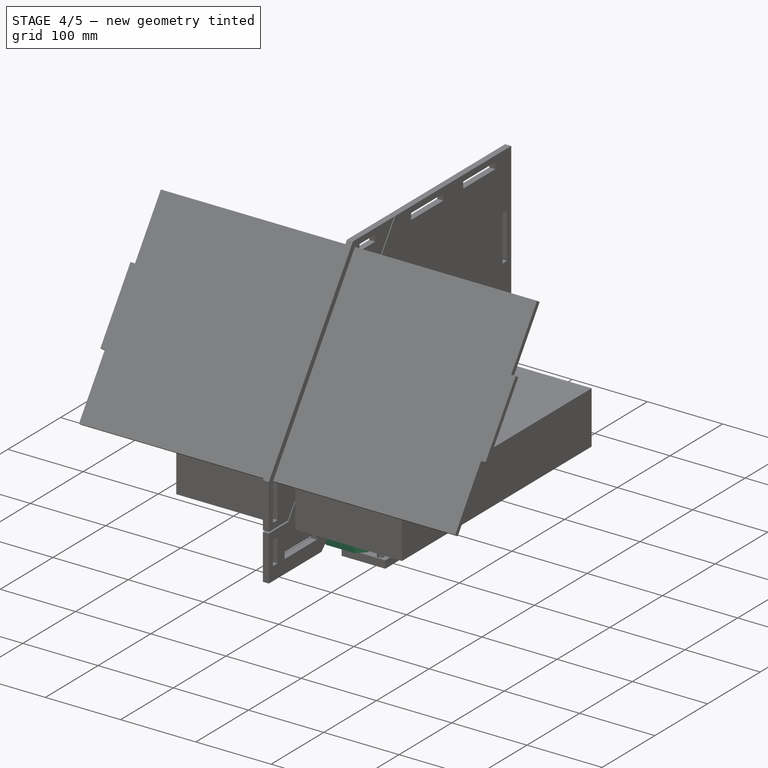
[diagram: stage 4 of 5 — iso view after this stage's code; geometry added in this stage tinted green]
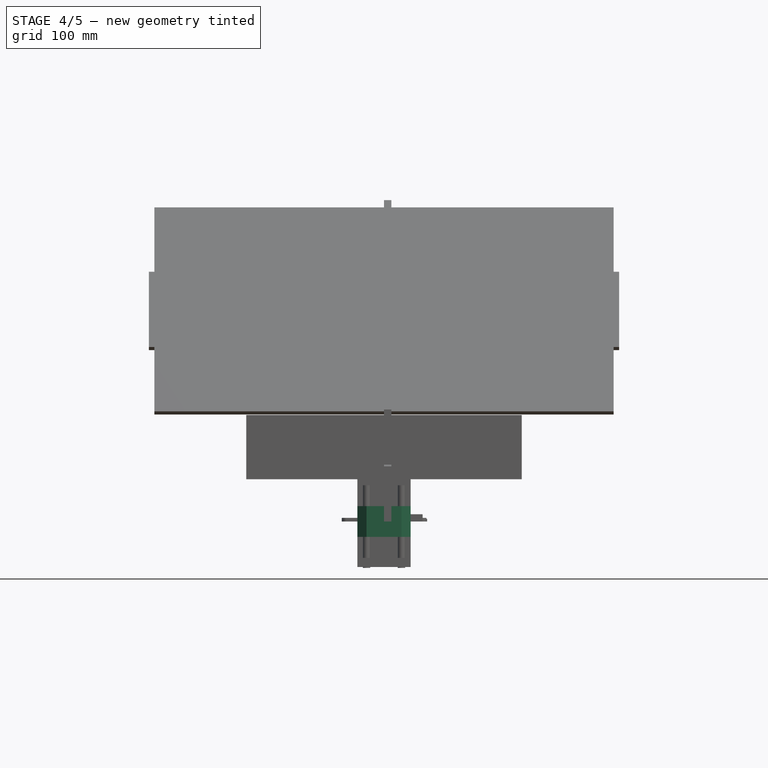
[diagram: stage 4 of 5 — front view after this stage's code; geometry added in this stage tinted green]
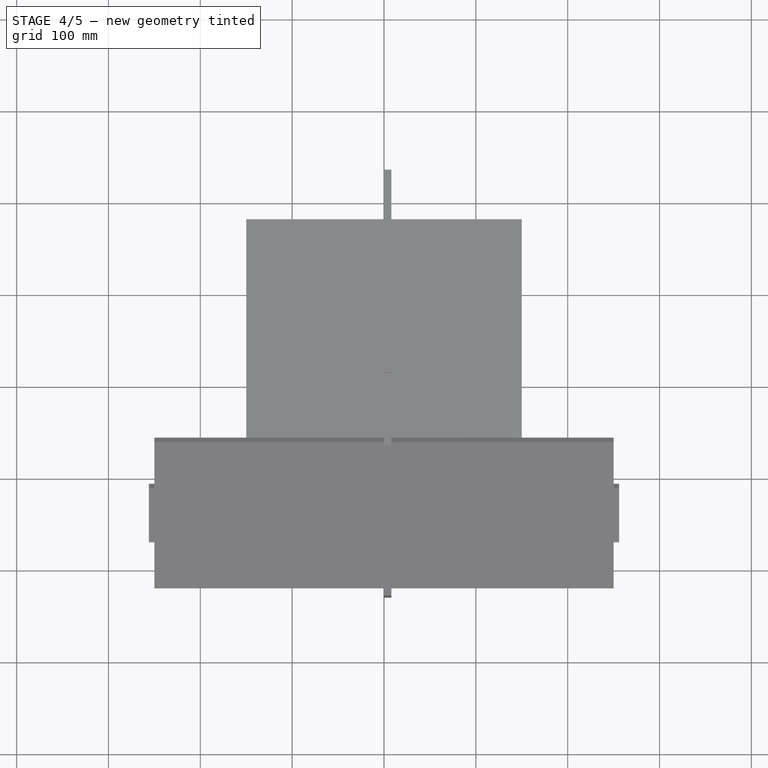
[diagram: stage 4 of 5 — top view after this stage's code; geometry added in this stage tinted green]
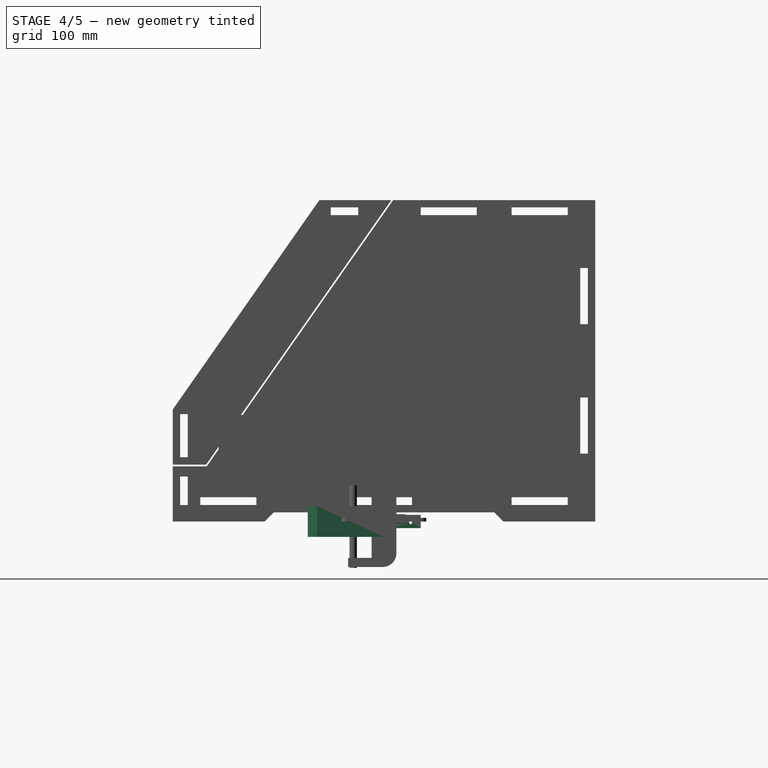
[diagram: stage 4 of 5 — right view after this stage's code; geometry added in this stage tinted green]
FEATURE [PartDesign::Body] Body004
  Group = -> [Sketch007,Pad004]
  Origin = -> Origin006
  Tip = -> Pad004
FEATURE [Sketcher::SketchObject] Sketch008  label="tnut-base"
  MapMode = 5
  Placement = pos=(0,0,0) rot=(0.57735,0.57735,0.57735;2.0944rad)
  Support = -> [YZ_Plane008]
  sketch-geometry (9):
    g0: LineSegment StartX=-6.5 StartY=0 StartZ=0 EndX=-6.5 EndY=2 EndZ=0
    g1: LineSegment StartX=-6.5 StartY=2 StartZ=0 EndX=-9.5 EndY=3.7 EndZ=0
    g2: LineSegment StartX=-9.5 StartY=3.7 StartZ=0 EndX=-9.5 EndY=6.2 EndZ=0
    g3: LineSegment StartX=-9.5 StartY=6.2 StartZ=0 EndX=-4 EndY=6.2 EndZ=0
    g4: LineSegment StartX=-4 StartY=6.2 StartZ=0 EndX=-4 EndY=10.2 EndZ=0
    g5: LineSegment StartX=-4 StartY=10.2 StartZ=0 EndX=0 EndY=10.2 EndZ=0
    g6: LineSegment StartX=0 StartY=10.2 StartZ=0 EndX=0 EndY=0 EndZ=0
    g7: LineSegment StartX=0 StartY=0 StartZ=0 EndX=-6.5 EndY=0 EndZ=0
    g8: LineSegment [constr] StartX=-6.5 StartY=2 StartZ=0 EndX=-6.5 EndY=6.2 EndZ=0
  constraints (27):
    c: PointOnObject(g0,g-1)
    c: Coincident(g0,g1)
    c: Coincident(g1,g2)
    c: Coincident(g2,g3)
    c: Horizontal(g3)
    c: Coincident(g3,g4)
    c: Coincident(g4,g5)
    c: PointOnObject(g5,g-2)
    c: Coincident(g5,g6)
    c: Coincident(g6,g-1)
    c: Coincident(g6,g7)
    c: Coincident(g7,g0)
    c: Vertical(g0)
    c: Vertical(g2)
    c: Vertical(g4)
    c: Horizontal(g5)
    c: DistanceY(g0,g0) = 2
    c: DistanceY(g2,g2) = 2.5
    c: DistanceY(g0,g2) = 6.2
    c: DistanceX(g5,g5) = 4
    c: DistanceX(g2) = -9.5
    c: Coincident(g8,g0)
    c: PointOnObject(g8,g3)
    c: Vertical(g8)
    c: DistanceX(g7,g7) = 6.5
    c: DistanceY(g4,g4) = 4
    c: DistanceY(g6,g6) = 10.2
FEATURE [PartDesign::Pad] Pad005
  Length = 20
  Length2 = 100
  Midplane = true
  Placement = pos=(0,0,0) rot=(0.57735,0.57735,0.57735;2.0944rad)
  Profile = -> Sketch008
  Type = 0
FEATURE [PartDesign::Mirrored] Mirrored
  BaseFeature = -> Pad005
  MirrorPlane = -> Sketch008 [V_Axis]
  Originals = -> [Pad005]
  Placement = pos=(0,0,0) rot=(0.57735,0.57735,0.57735;2.0944rad)
FEATURE [PartDesign::Pad] Pad007
  Length = 40
  Length2 = 100
  Placement = pos=(0,0,0) rot=(1,0,0;1.5708rad)
  Profile = -> Sketch011
  Reversed = true
  Type = 0
FEATURE [Sketcher::SketchObject] Sketch013  label="zstop-hold-holes"
  ExternalGeometry = -> [Pad007]
  MapMode = 5
  Placement = pos=(2,0,0) rot=(0.707107,0,0.707107;3.14159rad)
  Support = -> [Pad007]
  sketch-geometry (3):
    g0: Circle CenterX=-1.2 CenterY=-10 CenterZ=0 NormalX=0 NormalY=0 NormalZ=1 AngleXU=0 Radius=1.6
    g1: Circle CenterX=-1.2 CenterY=-29 CenterZ=0 NormalX=0 NormalY=0 NormalZ=1 AngleXU=0 Radius=1.6
    g2: LineSegment [constr] StartX=-1.2 StartY=-29 StartZ=0 EndX=-1.2 EndY=-10 EndZ=0
  constraints (8):
    c: Coincident(g2,g1)
    c: Coincident(g2,g0)
    c: Vertical(g2)
    c: Equal(g0,g1)
    c: Radius(g0) = 1.6
    c: DistanceY(g2,g2) = 19
    c: DistanceX(g-3,g0) = 6
    c: DistanceY(g0,g-3) = 10
FEATURE [PartDesign::Pocket] Pocket004
  BaseFeature = -> Pad007
  Length = 5
  Length2 = 100
  Placement = pos=(0,0,0) rot=(1,0,0;1.5708rad)
  Profile = -> Sketch013
  Type = 1
FEATURE [PartDesign::Body] Body006
  Group = -> [Sketch011,Pad007,Sketch013,Pocket004]
  Origin = -> Origin010
  Tip = -> Pocket004
FEATURE [App::Part] Part003
  Group = -> [Body006]
  License = CC BY 3.0
  LicenseURL = http://creativecommons.org/licenses/by/3.0/
  Origin = -> Origin009
  Placement = pos=(28,5,200.5) rot=(0,0,1;0rad)
FEATURE [Sketcher::SketchObject] Sketch014  label="zcar-base"
  MapMode = 5
  Placement = pos=(0,0,0) rot=(0.57735,0.57735,0.57735;2.0944rad)
  Support = -> [YZ_Plane015]
  sketch-geometry (4):
    g0: LineSegment StartX=0 StartY=-16.75 StartZ=0 EndX=-83 EndY=-16.75 EndZ=0
    g1: LineSegment StartX=-83 StartY=-16.75 StartZ=0 EndX=-83 EndY=16.75 EndZ=0
    g2: LineSegment StartX=-83 StartY=16.75 StartZ=0 EndX=0 EndY=16.75 EndZ=0
    g3: LineSegment StartX=0 StartY=16.75 StartZ=0 EndX=0 EndY=-16.75 EndZ=0
  constraints (12):
    c: Coincident(g0,g1)
    c: Coincident(g1,g2)
    c: Coincident(g2,g3)
    c: Coincident(g3,g0)
    c: Horizontal(g0)
    c: Horizontal(g2)
    c: Vertical(g1)
    c: Vertical(g3)
    c: Symmetric(g2,g0,g-1)
    c: DistanceY(g3,g3) = 33.5
    c: DistanceX(g2,g2) = 83
    c: PointOnObject(g2,g-2)
FEATURE [PartDesign::Pad] Pad008
  Length = 58
  Length2 = 100
  Midplane = true
  Placement = pos=(0,0,0) rot=(0.57735,0.57735,0.57735;2.0944rad)
  Profile = -> Sketch014
  Type = 0
FEATURE [PartDesign::Chamfer] Chamfer001
  Base = -> Pad008 [Edge6,Edge7]
  BaseFeature = -> Pad008
  Placement = pos=(0,0,0) rot=(0.57735,0.57735,0.57735;2.0944rad)
  Size = 10
FEATURE [Sketcher::SketchObject] Sketch018  label="zcar-spindlehole"
  MapMode = 5
  Placement = pos=(0,0,16.75) rot=(0,0,-1;1.5708rad)
  Support = -> [Chamfer001]
  sketch-geometry (1):
    g0: Circle CenterX=59.6966 CenterY=0 CenterZ=0 NormalX=0 NormalY=0 NormalZ=1 AngleXU=0 Radius=18.0521
  constraints (1):
    c: PointOnObject(g0,g-1)
FEATURE [PartDesign::Pocket] Pocket006
  BaseFeature = -> Chamfer001
  Length = 5
  Length2 = 100
  Placement = pos=(0,0,0) rot=(0.57735,0.57735,0.57735;2.0944rad)
  Profile = -> Sketch018
  Type = 1
FEATURE [PartDesign::Body] Body009
  Group = -> [Sketch014,Pad008,Chamfer001,Sketch018,Pocket006]
  Origin = -> Origin015
  Tip = -> Pocket006
FEATURE [App::Part] Part005
  Group = -> [Body009]
  License = CC BY 3.0
  LicenseURL = http://creativecommons.org/licenses/by/3.0/
  Origin = -> Origin014
  Placement = pos=(0,37,150) rot=(0,0,1;0rad)
FEATURE [Sketcher::SketchObject] Sketch019
  ExternalGeometry = -> [Pad010]
  MapMode = 5
  Placement = pos=(7,0,0) rot=(0.707107,0,0.707107;3.14159rad)
  Support = -> [Pad010]
  sketch-geometry (4):
    g0: LineSegment StartX=8 StartY=35 StartZ=0 EndX=2 EndY=35 EndZ=0
    g1: LineSegment StartX=2 StartY=17 StartZ=0 EndX=8 EndY=17 EndZ=0
    g2: LineSegment StartX=8 StartY=17 StartZ=0 EndX=8 EndY=35 EndZ=0
    g3: LineSegment StartX=2 StartY=17 StartZ=0 EndX=2 EndY=35 EndZ=0
  constraints (11):
    c: Coincident(g1,g2)
    c: Coincident(g2,g0)
    c: Horizontal(g0)
    c: Horizontal(g1)
    c: Vertical(g2)
    c: DistanceY(g2,g2) = 18
    c: DistanceX(g0,g0) = 6
    c: Coincident(g0,g-3)
    c: Coincident(g3,g1)
    c: Coincident(g3,g0)
    c: Vertical(g3)
FEATURE [PartDesign::Pad] Pad011
  BaseFeature = -> Pad010
  Length = 4.5
  Length2 = 100
  Placement = pos=(0,0,0) rot=(1,0,0;1.5708rad)
  Profile = -> Sketch019
  Reversed = true
  Type = 0
FEATURE [PartDesign::Fillet] Fillet
  Base = -> Pad011 [Edge35,Edge50,Edge45]
  BaseFeature = -> Pad011
  Placement = pos=(0,0,0) rot=(1,0,0;1.5708rad)
  Radius = 2
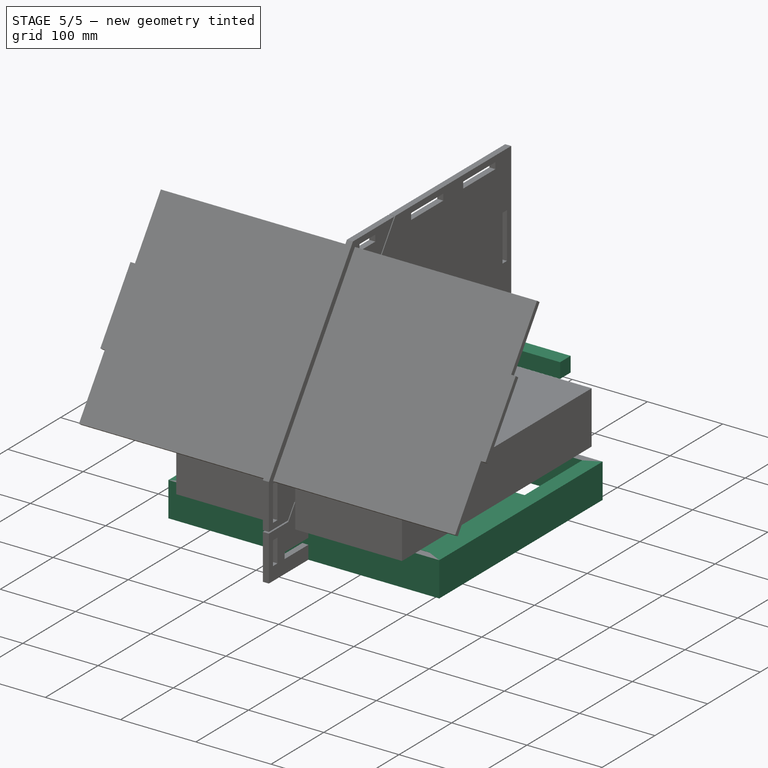
[diagram: stage 5 of 5 — iso view after this stage's code; geometry added in this stage tinted green]
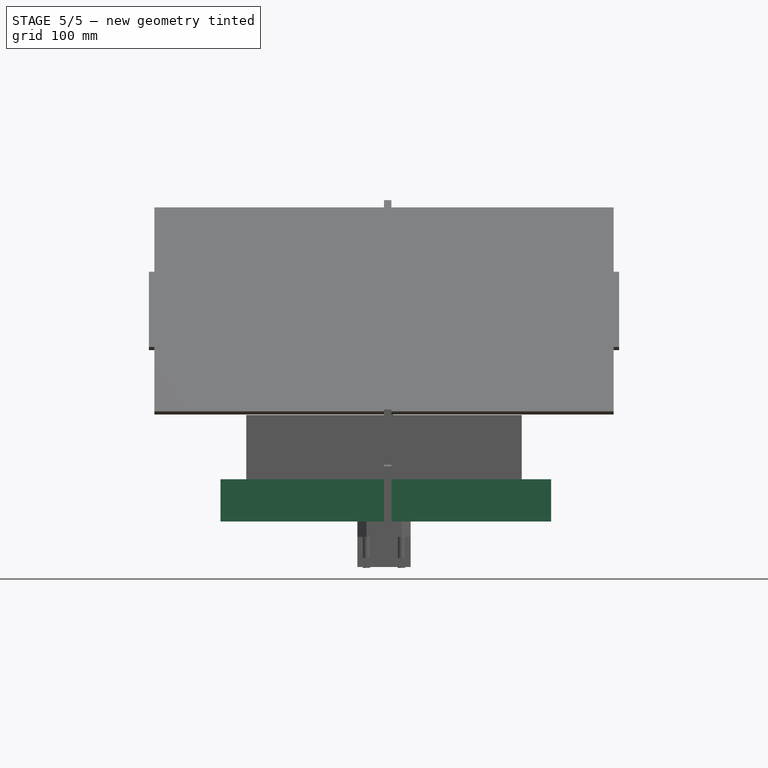
[diagram: stage 5 of 5 — front view after this stage's code; geometry added in this stage tinted green]
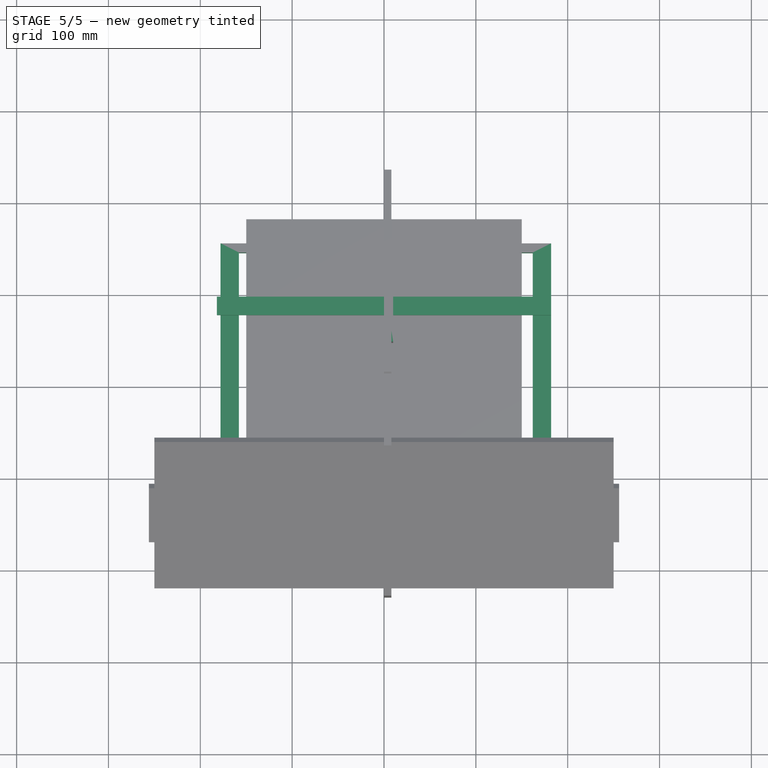
[diagram: stage 5 of 5 — top view after this stage's code; geometry added in this stage tinted green]
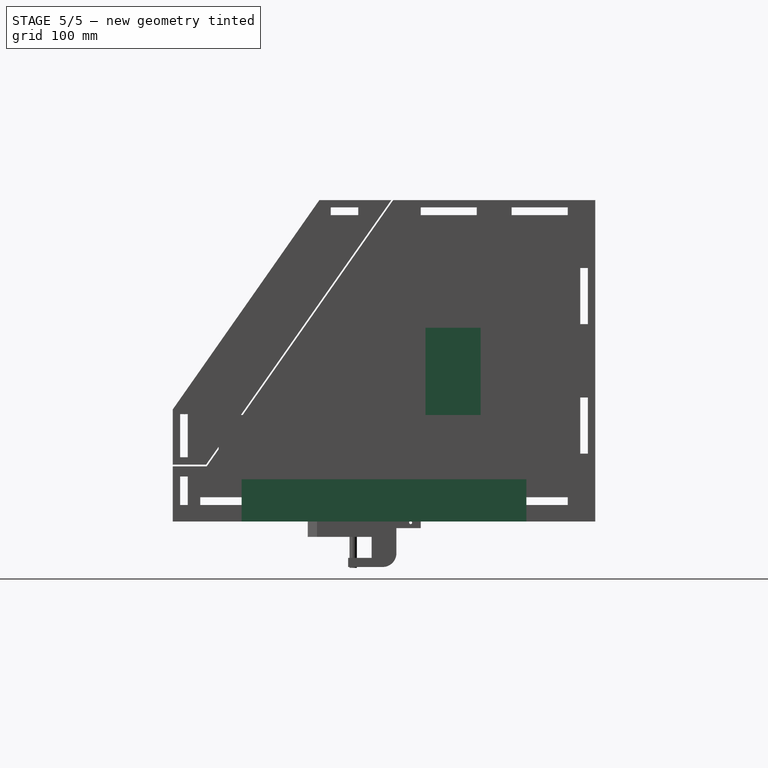
[diagram: stage 5 of 5 — right view after this stage's code; geometry added in this stage tinted green]
FEATURE [Sketcher::SketchObject] Sketch  label="bed-ref"
  MapMode = 5
  Support = -> [XY_Plane001]
  sketch-geometry (4):
    g0: LineSegment StartX=-150 StartY=90 StartZ=0 EndX=150 EndY=90 EndZ=0
    g1: LineSegment StartX=150 StartY=90 StartZ=0 EndX=150 EndY=-90 EndZ=0
    g2: LineSegment StartX=150 StartY=-90 StartZ=0 EndX=-150 EndY=-90 EndZ=0
    g3: LineSegment StartX=-150 StartY=-90 StartZ=0 EndX=-150 EndY=90 EndZ=0
  constraints (12):
    c: Coincident(g0,g1)
    c: Coincident(g1,g2)
    c: Coincident(g2,g3)
    c: Coincident(g3,g0)
    c: Horizontal(g0)
    c: Horizontal(g2)
    c: Vertical(g1)
    c: Vertical(g3)
    c: Symmetric(g1,g2,g-2)
    c: Symmetric(g2,g0,g-1)
    c: DistanceY(g3,g3) = 180
    c: DistanceX(g2,g2) = 300
FEATURE [PartDesign::Pad] Pad
  Length = 15
  Length2 = 100
  Profile = -> Sketch
  Type = 0
FEATURE [PartDesign::Body] Body
  Group = -> [Sketch,Pad]
  Origin = -> Origin001
  Placement = pos=(0,0,48) rot=(0,0,1;0rad)
  Tip = -> Pad
FEATURE [Sketcher::SketchObject] Sketch002  label="base-walls"
  MapMode = 5
  Support = -> [XY_Plane002]
  sketch-geometry (15):
    g0: LineSegment StartX=-158 StartY=145 StartZ=0 EndX=162 EndY=145 EndZ=0
    g1: LineSegment StartX=162 StartY=145 StartZ=0 EndX=162 EndY=-145 EndZ=0
    g2: LineSegment StartX=162 StartY=-145 StartZ=0 EndX=-158 EndY=-145 EndZ=0
    g3: LineSegment StartX=-158 StartY=-145 StartZ=0 EndX=-158 EndY=145 EndZ=0
    g4: LineSegment StartX=-178 StartY=155 StartZ=0 EndX=182 EndY=155 EndZ=0
    g5: LineSegment StartX=182 StartY=155 StartZ=0 EndX=182 EndY=-155 EndZ=0
    g6: LineSegment StartX=182 StartY=-155 StartZ=0 EndX=-178 EndY=-155 EndZ=0
    g7: LineSegment StartX=-178 StartY=-155 StartZ=0 EndX=-178 EndY=155 EndZ=0
    g8: LineSegment [constr] StartX=162 StartY=-96.305 StartZ=0 EndX=150 EndY=-96.305 EndZ=0
    g9: LineSegment [constr] StartX=150 StartY=-96.305 StartZ=0 EndX=-150 EndY=-96.305 EndZ=0
    g10: LineSegment [constr] StartX=-150 StartY=-96.305 StartZ=0 EndX=-158 EndY=-96.305 EndZ=0
    g11: LineSegment [constr] StartX=-158 StartY=145 StartZ=0 EndX=-158 EndY=155 EndZ=0
    g12: LineSegment [constr] StartX=-158 StartY=-145 StartZ=0 EndX=-158 EndY=-155 EndZ=0
    g13: LineSegment [constr] StartX=-158 StartY=145 StartZ=0 EndX=-178 EndY=145 EndZ=0
    g14: LineSegment [constr] StartX=162 StartY=145 StartZ=0 EndX=182 EndY=145 EndZ=0
  constraints (45):
    c: Coincident(g0,g1)
    c: Coincident(g1,g2)
    c: Coincident(g2,g3)
    c: Coincident(g3,g0)
    c: Horizontal(g0)
    c: Horizontal(g2)
    c: Vertical(g1)
    c: Vertical(g3)
    c: Coincident(g4,g5)
    c: Coincident(g5,g6)
    c: Coincident(g6,g7)
    c: Coincident(g7,g4)
    c: Horizontal(g4)
    c: Horizontal(g6)
    c: Vertical(g5)
    c: Vertical(g7)
    c: Horizontal(g8)
    c: DistanceX(g8,g8) = 12
    c: Coincident(g9,g8)
    c: Horizontal(g9)
    c: Coincident(g10,g9)
    c: Horizontal(g10)
    c: PointOnObject(g10,g3)
    c: DistanceX(g10,g10) = 8
    c: PointOnObject(g8,g1)
    c: Symmetric(g9,g8,g-2)
    c: DistanceY(g6,g2) = 10
    c: Coincident(g11,g0)
    c: Vertical(g11)
    c: Coincident(g12,g2)
    c: Vertical(g12)
    c: PointOnObject(g12,g6)
    c: Equal(g12,g11)
    c: Coincident(g13,g0)
    c: Horizontal(g13)
    c: Coincident(g14,g0)
    c: PointOnObject(g14,g5)
    c: Horizontal(g14)
    c: Equal(g13,g14)
    c: PointOnObject(g11,g4)
    c: PointOnObject(g13,g7)
    c: DistanceX(g13,g13) = 20
    c: DistanceY(g3,g3) = 290
    c: Symmetric(g0,g2,g-1)
    c: DistanceX(g0,g0) = 320
FEATURE [PartDesign::Pad] Pad001
  Length = 46
  Length2 = 100
  Profile = -> Sketch002
  Type = 0
FEATURE [PartDesign::Body] Body001
  Group = -> [Sketch002,Pad001]
  Origin = -> Origin002
  Tip = -> Pad001
FEATURE [Sketcher::SketchObject] Sketch003  label="sacrificial-outer"
  MapMode = 5
  Support = -> [XY_Plane004]
  sketch-geometry (4):
    g0: LineSegment StartX=-150 StartY=90 StartZ=0 EndX=150 EndY=90 EndZ=0
    g1: LineSegment StartX=150 StartY=90 StartZ=0 EndX=150 EndY=-90 EndZ=0
    g2: LineSegment StartX=150 StartY=-90 StartZ=0 EndX=-150 EndY=-90 EndZ=0
    g3: LineSegment StartX=-150 StartY=-90 StartZ=0 EndX=-150 EndY=90 EndZ=0
  constraints (12):
    c: Coincident(g0,g1)
    c: Coincident(g1,g2)
    c: Coincident(g2,g3)
    c: Coincident(g3,g0)
    c: Horizontal(g0)
    c: Horizontal(g2)
    c: Vertical(g1)
    c: Vertical(g3)
    c: Symmetric(g2,g1,g-2)
    c: Symmetric(g1,g0,g-1)
    c: DistanceX(g0,g0) = 300
    c: DistanceY(g1,g1) = 180
FEATURE [PartDesign::Pad] Pad002
  Length = 12
  Length2 = 100
  Profile = -> Sketch003
  Type = 0
FEATURE [Sketcher::SketchObject] Sketch004  label="sacrificial-pockets"
  MapMode = 5
  Placement = pos=(0,0,12) rot=(0,0,1;0rad)
  Support = -> [Pad002]
  sketch-geometry (8):
    g0: LineSegment [constr] StartX=-140 StartY=67.5 StartZ=0 EndX=140 EndY=67.5 EndZ=0
    g1: LineSegment [constr] StartX=140 StartY=67.5 StartZ=0 EndX=140 EndY=-67.5 EndZ=0
    g2: LineSegment [constr] StartX=140 StartY=-67.5 StartZ=0 EndX=-140 EndY=-67.5 EndZ=0
    g3: LineSegment [constr] StartX=-140 StartY=-67.5 StartZ=0 EndX=-140 EndY=67.5 EndZ=0
    g4: Circle CenterX=-140 CenterY=67.5 CenterZ=0 NormalX=0 NormalY=0 NormalZ=1 AngleXU=0 Radius=4.5
    g5: Circle CenterX=-140 CenterY=-67.5 CenterZ=0 NormalX=0 NormalY=0 NormalZ=1 AngleXU=0 Radius=4.5
    g6: Circle CenterX=140 CenterY=-67.5 CenterZ=0 NormalX=0 NormalY=0 NormalZ=1 AngleXU=0 Radius=4.5
    g7: Circle CenterX=140 CenterY=67.5 CenterZ=0 NormalX=0 NormalY=0 NormalZ=1 AngleXU=0 Radius=4.5
  constraints (20):
    c: Coincident(g0,g1)
    c: Coincident(g1,g2)
    c: Coincident(g2,g3)
    c: Coincident(g3,g0)
    c: Horizontal(g0)
    c: Horizontal(g2)
    c: Vertical(g1)
    c: Vertical(g3)
    c: Symmetric(g0,g0,g-2)
    c: Symmetric(g2,g0,g-1)
    c: DistanceY(g3,g3) = 135
    c: DistanceX(g0,g0) = 280
    c: Coincident(g4,g0)
    c: Coincident(g6,g1)
    c: Coincident(g7,g0)
    c: Coincident(g5,g2)
    c: Equal(g5,g4)
    c: Equal(g4,g6)
    c: Equal(g6,g7)
    c: Radius(g7) = 4.5
FEATURE [PartDesign::Pocket] Pocket
  BaseFeature = -> Pad002
  Length = 7
  Length2 = 100
  Profile = -> Sketch004
  Type = 0
FEATURE [Sketcher::SketchObject] Sketch005  label="sacrificial-holes"
  ExternalGeometry = -> [Pocket]
  MapMode = 5
  Placement = pos=(0,0,12) rot=(0,0,1;0rad)
  Support = -> [Pocket]
  sketch-geometry (8):
    g0: LineSegment [constr] StartX=140 StartY=67.5 StartZ=0 EndX=-140 EndY=67.5 EndZ=0
    g1: LineSegment [constr] StartX=-140 StartY=67.5 StartZ=0 EndX=-140 EndY=-67.5 EndZ=0
    g2: LineSegment [constr] StartX=-140 StartY=-67.5 StartZ=0 EndX=140 EndY=-67.5 EndZ=0
    g3: LineSegment [constr] StartX=140 StartY=-67.5 StartZ=0 EndX=140 EndY=67.5 EndZ=0
    g4: Circle CenterX=-140 CenterY=67.5 CenterZ=0 NormalX=0 NormalY=0 NormalZ=1 AngleXU=0 Radius=1.7
    g5: Circle CenterX=-140 CenterY=-67.5 CenterZ=0 NormalX=0 NormalY=0 NormalZ=1 AngleXU=0 Radius=1.7
    g6: Circle CenterX=140 CenterY=-67.5 CenterZ=0 NormalX=0 NormalY=0 NormalZ=1 AngleXU=0 Radius=1.7
    g7: Circle CenterX=140 CenterY=67.5 CenterZ=0 NormalX=0 NormalY=0 NormalZ=1 AngleXU=0 Radius=1.7
  constraints (18):
    c: Coincident(g0,g1)
    c: Coincident(g1,g2)
    c: Coincident(g2,g3)
    c: Coincident(g3,g0)
    c: Horizontal(g0)
    c: Horizontal(g2)
    c: Vertical(g1)
    c: Vertical(g3)
    c: Coincident(g0,g-3)
    c: Coincident(g1,g-4)
    c: Coincident(g4,g0)
    c: Coincident(g5,g1)
    c: Coincident(g7,g0)
    c: Coincident(g6,g2)
    c: Equal(g6,g5)
    c: Equal(g5,g4)
    c: Equal(g4,g7)
    c: Radius(g7) = 1.7
FEATURE [PartDesign::Pocket] Pocket001
  BaseFeature = -> Pocket
  Length = 5
  Length2 = 100
  Profile = -> Sketch005
  Type = 1
FEATURE [PartDesign::Body] Body002
  Group = -> [Sketch003,Pad002,Sketch004,Pocket,Sketch005,Pocket001]
  Origin = -> Origin004
  Placement = pos=(0,0,64) rot=(0,0,1;0rad)
  Tip = -> Pocket001
FEATURE [Sketcher::SketchObject] Sketch006  label="side-outer"
  MapMode = 5
  Placement = pos=(0,0,0) rot=(0.57735,0.57735,0.57735;2.0944rad)
  Support = -> [YZ_Plane005]
  sketch-geometry (10):
    g0: LineSegment StartX=13.889 StartY=9.38705 StartZ=0 EndX=13.889 EndY=64.387 EndZ=0
    g1: LineSegment StartX=13.889 StartY=64.387 StartZ=0 EndX=45.194 EndY=92.387 EndZ=0
    g2: LineSegment StartX=45.194 StartY=92.387 StartZ=0 EndX=45.194 EndY=210.969 EndZ=0
    g3: LineSegment StartX=45.194 StartY=210.969 StartZ=0 EndX=105.194 EndY=210.969 EndZ=0
    g4: LineSegment StartX=105.194 StartY=210.969 StartZ=0 EndX=105.194 EndY=75.9693 EndZ=0
    g5: LineSegment StartX=105.194 StartY=75.9693 StartZ=0 EndX=88.889 EndY=64.387 EndZ=0
    g6: LineSegment StartX=88.889 StartY=64.387 StartZ=0 EndX=88.889 EndY=9.38705 EndZ=0
    g7: LineSegment StartX=88.889 StartY=9.38705 StartZ=0 EndX=13.889 EndY=9.38705 EndZ=0
    g8: LineSegment [constr] StartX=13.889 StartY=64.387 StartZ=0 EndX=88.889 EndY=64.387 EndZ=0
    g9: LineSegment [constr] StartX=88.889 StartY=9.38705 StartZ=0 EndX=154.889 EndY=9.38705 EndZ=0
  constraints (27):
    c: Vertical(g0)
    c: Coincident(g0,g1)
    c: Coincident(g1,g2)
    c: Vertical(g2)
    c: Coincident(g2,g3)
    c: Horizontal(g3)
    c: Coincident(g3,g4)
    c: Vertical(g4)
    c: Coincident(g4,g5)
    c: Coincident(g5,g6)
    c: Coincident(g7,g6)
    c: Coincident(g7,g0)
    c: Horizontal(g7)
    c: Vertical(g6)
    c: Coincident(g8,g0)
    c: Coincident(g8,g5)
    c: Horizontal(g8)
    c: DistanceX(g7,g7) = 75
    c: DistanceX(g3,g3) = 60
    c: DistanceY(g0,g0) = 55
    c: Distance(g1) = 42
    c: Distance(g5) = 20
    c: DistanceY(g0,g1) = 28
    c: DistanceY(g4,g4) = 135
    c: Coincident(g9,g6)
    c: Horizontal(g9)
    c: DistanceX(g9,g9) = 66
FEATURE [PartDesign::Pad] Pad003
  Length = 10
  Length2 = 100
  Placement = pos=(0,0,0) rot=(0.57735,0.57735,0.57735;2.0944rad)
  Profile = -> Sketch006
  Type = 0
FEATURE [PartDesign::Body] Body003
  Group = -> [Sketch006,Pad003]
  Origin = -> Origin005
  Placement = pos=(182,0,0) rot=(0,0,1;0rad)
  Tip = -> Pad003
FEATURE [Sketcher::SketchObject] Sketch007
  MapMode = 5
  Placement = pos=(0,0,0) rot=(0.57735,0.57735,0.57735;2.0944rad)
  sketch-geometry (4):
    g0: LineSegment StartX=94.3557 StartY=196.2 StartZ=0 EndX=74.3557 EndY=196.2 EndZ=0
    g1: LineSegment StartX=74.3557 StartY=196.2 StartZ=0 EndX=74.3557 EndY=176.2 EndZ=0
    g2: LineSegment StartX=74.3557 StartY=176.2 StartZ=0 EndX=94.3557 EndY=176.2 EndZ=0
    g3: LineSegment StartX=94.3557 StartY=176.2 StartZ=0 EndX=94.3557 EndY=196.2 EndZ=0
  constraints (9):
    c: Coincident(g0,g1)
    c: Coincident(g1,g2)
    c: Coincident(g2,g3)
    c: Coincident(g3,g0)
    c: Horizontal(g0)
    c: Horizontal(g2)
    c: Vertical(g1)
    c: Vertical(g3)
    c: DistanceY(g1,g1) = 20
FEATURE [PartDesign::Pad] Pad004
  Length = 364
  Length2 = 100
  Midplane = true
  Placement = pos=(0,0,0) rot=(0.57735,0.57735,0.57735;2.0944rad)
  Profile = -> Sketch007
  Type = 0
FEATURE [Sketcher::SketchObject] Sketch009  label="tnut-nutslot"
  MapMode = 5
  Placement = pos=(0,0,0) rot=(0.707107,0.707107,0;3.14159rad)
  Support = -> [Mirrored]
  sketch-geometry (7):
    g0: LineSegment StartX=-1.73205 StartY=3 StartZ=0 EndX=-3.4641 EndY=0 EndZ=0
    g1: LineSegment StartX=-3.4641 StartY=0 StartZ=0 EndX=-1.73205 EndY=-3 EndZ=0
    g2: LineSegment StartX=-1.73205 StartY=-3 StartZ=0 EndX=1.73205 EndY=-3 EndZ=0
    g3: LineSegment StartX=1.73205 StartY=-3 StartZ=0 EndX=3.4641 EndY=0 EndZ=0
    g4: LineSegment StartX=3.4641 StartY=0 StartZ=0 EndX=1.73205 EndY=3 EndZ=0
    g5: LineSegment StartX=1.73205 StartY=3 StartZ=0 EndX=-1.73205 EndY=3 EndZ=0
    g6: Circle [constr] CenterX=0 CenterY=0 CenterZ=0 NormalX=0 NormalY=0 NormalZ=1 AngleXU=0 Radius=3.4641
  constraints (16):
    c: Coincident(g0,g1)
    c: Coincident(g1,g2)
    c: Coincident(g2,g3)
    c: Coincident(g3,g4)
    c: Coincident(g4,g5)
    c: Coincident(g5,g0)
    c: Equal(g0, g1-g5) x5
    c: PointOnObject(g0,g6)
    c: PointOnObject(g1,g6)
    c: PointOnObject(g2,g6)
    c: PointOnObject(g3,g6)
    c: PointOnObject(g4,g6)
    c: PointOnObject(g5,g6)
    c: Coincident(g6,g-1)
    c: Horizontal(g5)
    c: DistanceY(g1,g0) = 6
FEATURE [PartDesign::Pocket] Pocket002
  BaseFeature = -> Mirrored
  Length = 4
  Length2 = 100
  Placement = pos=(0,0,0) rot=(0.57735,0.57735,0.57735;2.0944rad)
  Profile = -> Sketch009
  Type = 0
FEATURE [Sketcher::SketchObject] Sketch010  label="tnut-hole"
  MapMode = 5
  Placement = pos=(0,0,4) rot=(0.707107,0.707107,0;3.14159rad)
  Support = -> [Pocket002]
  sketch-geometry (1):
    g0: Circle CenterX=0 CenterY=0 CenterZ=0 NormalX=0 NormalY=0 NormalZ=1 AngleXU=0 Radius=1.65
  constraints (2):
    c: Coincident(g0,g-1)
    c: Radius(g0) = 1.65
FEATURE [PartDesign::Pocket] Pocket003
  BaseFeature = -> Pocket002
  Length = 5
  Length2 = 100
  Placement = pos=(0,0,0) rot=(0.57735,0.57735,0.57735;2.0944rad)
  Profile = -> Sketch010
  Type = 1
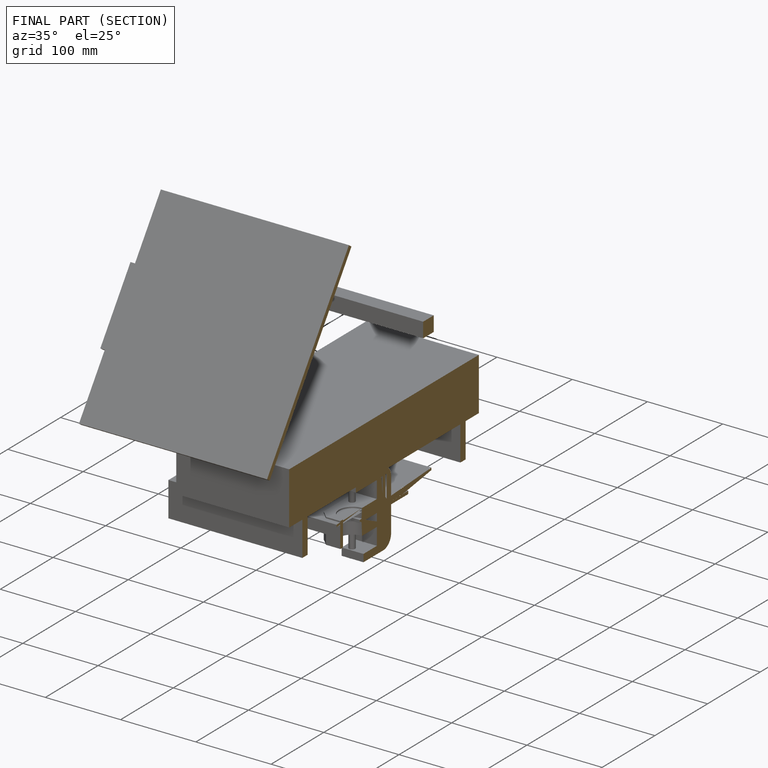
[diagram: finished part — half-section view (interior)]
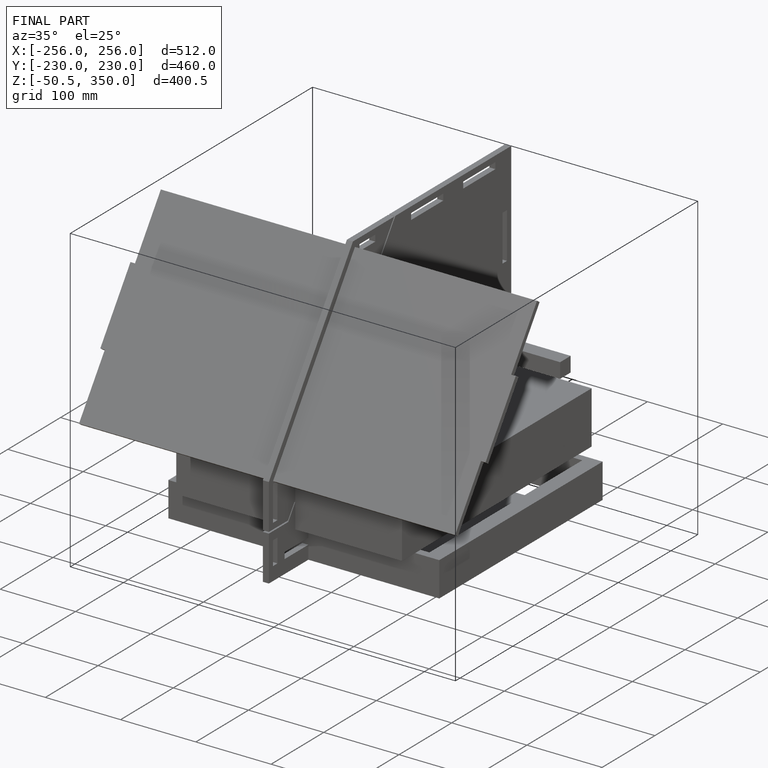
[diagram: finished part — iso view with bounding-box wireframe]
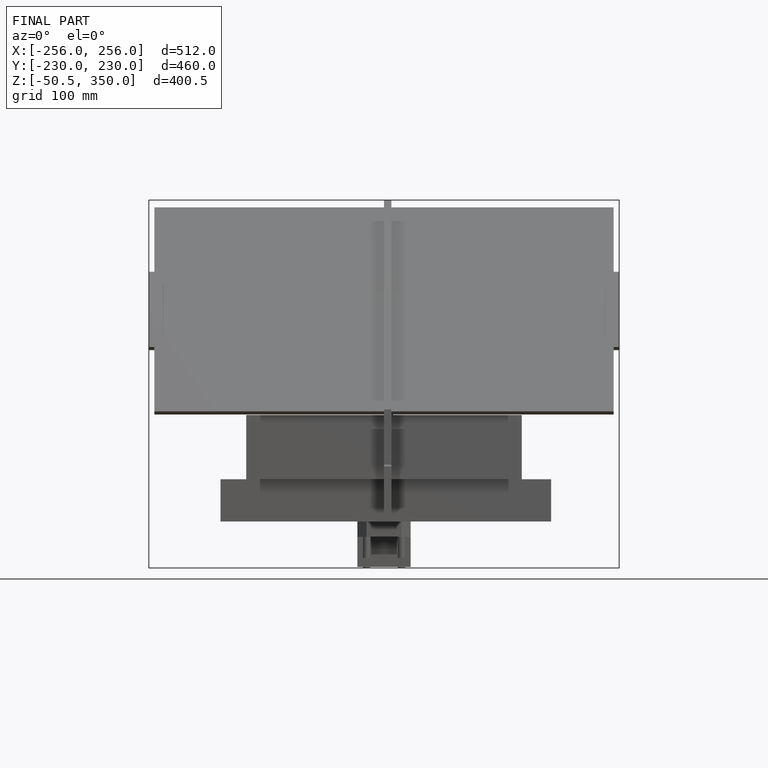
[diagram: finished part — front view with bounding-box wireframe]
